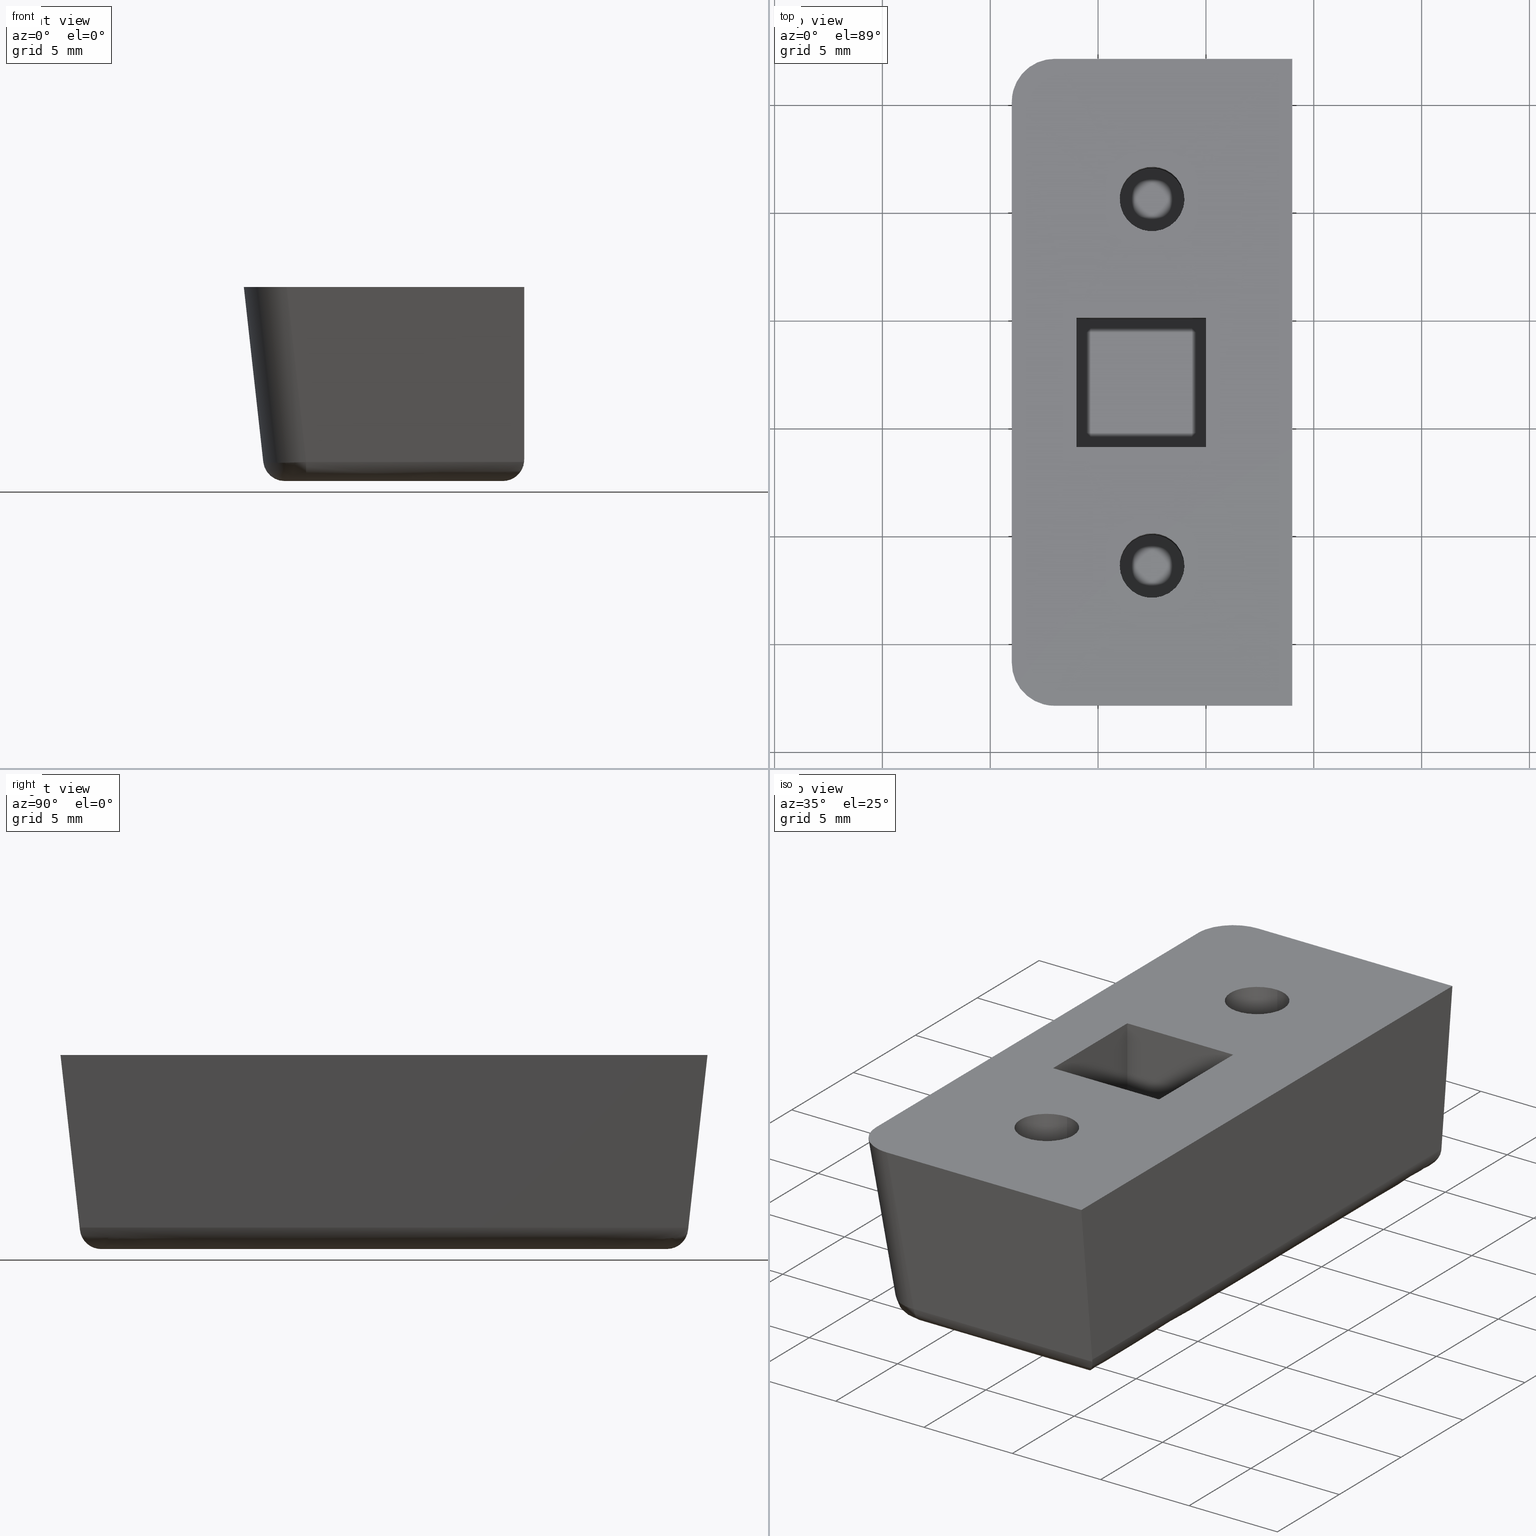
[diagram: canonical four-view strip — front | top / right | iso, engineering-drawing reading convention]
A machine part, canonical four-view strip (front | top / right | iso — engineering-drawing reading convention). The complete STEP part file that produces these views, byte-faithful:
ISO-10303-21;
HEADER;
/****************************************************************
 * Generated by software with PDE/Lib inside                    *
 * PDElib Version 4.4.1-0003, patched  Thursday August 19 11:58 *
 * International Technegroup Inc. (www.iti-oh.com)              *
 ****************************************************************/
FILE_DESCRIPTION((''),'2;1');
FILE_NAME('','2005-12-15T09:37:34',(''),(''),'','CADfix','');
FILE_SCHEMA(('AUTOMOTIVE_DESIGN'));
ENDSEC;
DATA;
#5=APPLICATION_CONTEXT('automotive design');
#6=APPLICATION_PROTOCOL_DEFINITION('Draft International Standard','automotive_design',1998,#5);
#7=PRODUCT_CONTEXT('None',#5,'mechanical');
#8=PRODUCT('rubber pad','','None',(#7));
#9=PRODUCT_RELATED_PRODUCT_CATEGORY('part','description',(#8));
#10=PRODUCT_DEFINITION_FORMATION('None','None',#8);
#11=PRODUCT_DEFINITION_CONTEXT('part definition',#5,'design');
#12=PRODUCT_DEFINITION('None','None',#10,#11);
#18=(NAMED_UNIT(*)PLANE_ANGLE_UNIT()SI_UNIT($,.RADIAN.));
#19=DIMENSIONAL_EXPONENTS(0.0,0.0,0.0,0.0,0.0,0.0,0.0);
#20=PLANE_ANGLE_MEASURE_WITH_UNIT(PLANE_ANGLE_MEASURE(0.017453292500000),#18);
#24=(CONVERSION_BASED_UNIT('DEGREE',#20)NAMED_UNIT(#19)PLANE_ANGLE_UNIT());
#28=(NAMED_UNIT(*)SI_UNIT($,.STERADIAN.)SOLID_ANGLE_UNIT());
#32=(LENGTH_UNIT()NAMED_UNIT(*)SI_UNIT(.MILLI.,.METRE.));
#34=UNCERTAINTY_MEASURE_WITH_UNIT(LENGTH_MEASURE(0.001000000000000),#32,'DISTANCE_ACCURACY_VALUE','');
#36=(GEOMETRIC_REPRESENTATION_CONTEXT(3)GLOBAL_UNCERTAINTY_ASSIGNED_CONTEXT((#34))GLOBAL_UNIT_ASSIGNED_CONTEXT((#24,#28,#32))REPRESENTATION_CONTEXT('None','None'));
#37=AXIS2_PLACEMENT_3D('',#38,#39,#40);
#38=CARTESIAN_POINT('',(0.0,0.0,0.0));
#39=DIRECTION('',(0.0,0.0,1.0));
#40=DIRECTION('',(1.0,0.0,0.0));
#41=ADVANCED_BREP_SHAPE_REPRESENTATION('',(#37,#1159),#36);
#42=PRODUCT_DEFINITION_SHAPE('','',#12);
#43=SHAPE_DEFINITION_REPRESENTATION(#42,#41);
#44=CARTESIAN_POINT('',(-182.677051351985110,-17.989514289545500,34.399999999999999));
#45=CARTESIAN_POINT('',(-182.634422092956950,-17.994581423172914,34.399999999999999));
#46=CARTESIAN_POINT('',(-182.591572809302310,-17.997202197632799,34.399999999999999));
#47=CARTESIAN_POINT('',(-181.094370611669430,-18.088775006935087,34.400000000000006));
#48=CARTESIAN_POINT('',(-181.002797802367210,-16.591572809302289,34.399999999999999));
#49=CARTESIAN_POINT('',(-180.911224993064880,-15.094370611669488,34.400000000000006));
#50=CARTESIAN_POINT('',(-182.408427190697690,-15.002797802367200,34.399999999999999));
#51=CARTESIAN_POINT('',(-182.677051351985110,-17.989514289545500,38.602499999999999));
#52=CARTESIAN_POINT('',(-182.634422092956950,-17.994581423172914,38.602499999999999));
#53=CARTESIAN_POINT('',(-182.591572809302310,-17.997202197632799,38.602499999999999));
#54=CARTESIAN_POINT('',(-181.094370611669430,-18.088775006935087,38.602499999999999));
#55=CARTESIAN_POINT('',(-181.002797802367210,-16.591572809302289,38.602499999999999));
#56=CARTESIAN_POINT('',(-180.911224993064880,-15.094370611669488,38.602499999999999));
#57=CARTESIAN_POINT('',(-182.408427190697690,-15.002797802367200,38.602499999999999));
#65=(BOUNDED_SURFACE()B_SPLINE_SURFACE(2,1,((#44,#51),(#45,#52),(#46,#53),(#47,#54),(#48,#55),(#49,#56),(#50,#57)),.UNSPECIFIED.,.F.,.F.,.U.)B_SPLINE_SURFACE_WITH_KNOTS((3,2,2,3),(2,2),(3.078760800517997,3.141592653589793,4.712388980384690,6.283185307179586),(0.0,4.202500000000001),.UNSPECIFIED.)GEOMETRIC_REPRESENTATION_ITEM()RATIONAL_B_SPLINE_SURFACE(((0.977505800795127,0.977505800795127),(0.988284271247462,0.988284271247462),(1.0,1.0),(0.707106781186548,0.707106781186548),(1.0,1.0),(0.707106781186548,0.707106781186548),(1.0,1.0)))REPRESENTATION_ITEM('')SURFACE());
#66=CARTESIAN_POINT('',(-182.677051351996910,-17.989514289544100,34.500000000000000));
#67=VERTEX_POINT('',#66);
#68=CARTESIAN_POINT('',(-181.0,-16.500000000000000,34.500000000000000));
#69=VERTEX_POINT('',#68);
#70=CARTESIAN_POINT('',(-182.677051351996880,-17.989514289544108,34.500000000000000));
#71=CARTESIAN_POINT('',(-182.588836179489730,-18.000000000000011,34.500000000000000));
#72=CARTESIAN_POINT('',(-182.500000000000000,-18.0,34.500000000000000));
#73=CARTESIAN_POINT('',(-180.999999999999970,-18.000000000000007,34.500000000000000));
#74=CARTESIAN_POINT('',(-181.0,-16.500000000000000,34.500000000000000));
#82=(BOUNDED_CURVE()B_SPLINE_CURVE(2,(#70,#71,#72,#73,#74),.UNSPECIFIED.,.F.,.U.)B_SPLINE_CURVE_WITH_KNOTS((3,2,3),(0.229562473512975,0.250000000000000,0.500000000000000),.UNSPECIFIED.)CURVE()GEOMETRIC_REPRESENTATION_ITEM()RATIONAL_B_SPLINE_CURVE((0.956026754182654,0.976055948330520,1.0,0.707106781186548,1.0))REPRESENTATION_ITEM(''));
#83=EDGE_CURVE('',#67,#69,#82,.T.);
#84=ORIENTED_EDGE('',*,*,#83,.F.);
#85=CARTESIAN_POINT('',(-182.677051351996910,-17.989514289544100,38.500000000000000));
#86=VERTEX_POINT('',#85);
#87=CARTESIAN_POINT('',(-182.677051351996910,-17.989514289544100,34.500000000000000));
#88=CARTESIAN_POINT('',(-182.677051351996910,-17.989514289544100,38.500000000000000));
#89=QUASI_UNIFORM_CURVE('',1,(#87,#88),.UNSPECIFIED.,.F.,.U.);
#90=EDGE_CURVE('',#67,#86,#89,.T.);
#91=ORIENTED_EDGE('',*,*,#90,.T.);
#92=CARTESIAN_POINT('',(-181.0,-16.500000000000000,38.500000000000000));
#93=VERTEX_POINT('',#92);
#94=CARTESIAN_POINT('',(-182.677051351996880,-17.989514289544108,38.500000000000000));
#95=CARTESIAN_POINT('',(-182.588836179489730,-18.000000000000011,38.500000000000000));
#96=CARTESIAN_POINT('',(-182.500000000000000,-18.0,38.500000000000000));
#97=CARTESIAN_POINT('',(-180.999999999999970,-18.000000000000007,38.500000000000000));
#98=CARTESIAN_POINT('',(-181.0,-16.500000000000000,38.500000000000000));
#106=(BOUNDED_CURVE()B_SPLINE_CURVE(2,(#94,#95,#96,#97,#98),.UNSPECIFIED.,.F.,.U.)B_SPLINE_CURVE_WITH_KNOTS((3,2,3),(0.229562473512975,0.250000000000000,0.500000000000000),.UNSPECIFIED.)CURVE()GEOMETRIC_REPRESENTATION_ITEM()RATIONAL_B_SPLINE_CURVE((0.956026754182654,0.976055948330520,1.0,0.707106781186548,1.0))REPRESENTATION_ITEM(''));
#107=EDGE_CURVE('',#86,#93,#106,.T.);
#108=ORIENTED_EDGE('',*,*,#107,.T.);
#109=CARTESIAN_POINT('',(-182.408427190619700,-15.002797802371971,38.500000000000000));
#110=VERTEX_POINT('',#109);
#111=CARTESIAN_POINT('',(-181.0,-16.500000000000000,38.500000000000000));
#112=CARTESIAN_POINT('',(-181.000000000000090,-15.088940899788795,38.500000000000007));
#113=CARTESIAN_POINT('',(-182.408427190619730,-15.002797802371971,38.500000000000000));
#121=(BOUNDED_CURVE()B_SPLINE_CURVE(2,(#111,#112,#113),.UNSPECIFIED.,.F.,.U.)B_SPLINE_CURVE_WITH_KNOTS((3,3),(0.500000000000000,0.739332962223986),.UNSPECIFIED.)CURVE()GEOMETRIC_REPRESENTATION_ITEM()RATIONAL_B_SPLINE_CURVE((1.0,0.719603993304233,0.976072041634662))REPRESENTATION_ITEM(''));
#122=EDGE_CURVE('',#93,#110,#121,.T.);
#123=ORIENTED_EDGE('',*,*,#122,.T.);
#124=CARTESIAN_POINT('',(-182.408427190619700,-15.002797802371971,34.500000000000000));
#125=VERTEX_POINT('',#124);
#126=CARTESIAN_POINT('',(-182.408427190619700,-15.002797802371971,34.500000000000000));
#127=CARTESIAN_POINT('',(-182.408427190619700,-15.002797802371971,38.500000000000000));
#128=QUASI_UNIFORM_CURVE('',1,(#126,#127),.UNSPECIFIED.,.F.,.U.);
#129=EDGE_CURVE('',#125,#110,#128,.T.);
#130=ORIENTED_EDGE('',*,*,#129,.F.);
#131=CARTESIAN_POINT('',(-181.0,-16.500000000000000,34.500000000000000));
#132=CARTESIAN_POINT('',(-181.000000000000090,-15.088940899788795,34.500000000000000));
#133=CARTESIAN_POINT('',(-182.408427190619730,-15.002797802371971,34.500000000000000));
#141=(BOUNDED_CURVE()B_SPLINE_CURVE(2,(#131,#132,#133),.UNSPECIFIED.,.F.,.U.)B_SPLINE_CURVE_WITH_KNOTS((3,3),(0.500000000000000,0.739332962223986),.UNSPECIFIED.)CURVE()GEOMETRIC_REPRESENTATION_ITEM()RATIONAL_B_SPLINE_CURVE((1.0,0.719603993304233,0.976072041634662))REPRESENTATION_ITEM(''));
#142=EDGE_CURVE('',#69,#125,#141,.T.);
#143=ORIENTED_EDGE('',*,*,#142,.F.);
#144=EDGE_LOOP('',(#84,#91,#108,#123,#130,#143));
#145=FACE_OUTER_BOUND('',#144,.T.);
#146=ADVANCED_FACE('',(#145),#65,.F.);
#147=CARTESIAN_POINT('',(-182.408427190697690,-15.002797802367200,34.399999999999999));
#148=CARTESIAN_POINT('',(-183.905629388330480,-14.911224993064913,34.400000000000006));
#149=CARTESIAN_POINT('',(-183.997202197632790,-16.408427190697719,34.399999999999999));
#150=CARTESIAN_POINT('',(-184.083679295098790,-17.822315236259243,34.399999999999999));
#151=CARTESIAN_POINT('',(-182.677051351985110,-17.989514289545500,34.399999999999999));
#152=CARTESIAN_POINT('',(-182.408427190697690,-15.002797802367200,38.602499999999999));
#153=CARTESIAN_POINT('',(-183.905629388330480,-14.911224993064913,38.602499999999999));
#154=CARTESIAN_POINT('',(-183.997202197632790,-16.408427190697719,38.602499999999999));
#155=CARTESIAN_POINT('',(-184.083679295098790,-17.822315236259243,38.602500000000006));
#156=CARTESIAN_POINT('',(-182.677051351985110,-17.989514289545500,38.602499999999999));
#164=(BOUNDED_SURFACE()B_SPLINE_SURFACE(2,1,((#147,#152),(#148,#153),(#149,#154),(#150,#155),(#151,#156)),.UNSPECIFIED.,.F.,.F.,.U.)B_SPLINE_SURFACE_WITH_KNOTS((3,2,3),(2,2),(0.0,1.570796326794897,3.078760800517997),(0.0,4.202500000000002),.UNSPECIFIED.)GEOMETRIC_REPRESENTATION_ITEM()RATIONAL_B_SPLINE_SURFACE(((1.0,1.0),(0.707106781186548,0.707106781186548),(1.0,1.0),(0.718822509939086,0.718822509939086),(0.977505800795127,0.977505800795127)))REPRESENTATION_ITEM('')SURFACE());
#165=CARTESIAN_POINT('',(-184.0,-16.500000000000000,34.500000000000000));
#166=VERTEX_POINT('',#165);
#167=CARTESIAN_POINT('',(-184.0,-16.500000000000000,34.500000000000000));
#168=CARTESIAN_POINT('',(-184.000000000000060,-17.832261788905868,34.500000000000000));
#169=CARTESIAN_POINT('',(-182.677051351996880,-17.989514289544108,34.500000000000000));
#177=(BOUNDED_CURVE()B_SPLINE_CURVE(2,(#167,#168,#169),.UNSPECIFIED.,.F.,.U.)B_SPLINE_CURVE_WITH_KNOTS((3,3),(0.0,0.229562473512975),.UNSPECIFIED.)CURVE()GEOMETRIC_REPRESENTATION_ITEM()RATIONAL_B_SPLINE_CURVE((1.0,0.731050832856028,0.956026754182654))REPRESENTATION_ITEM(''));
#178=EDGE_CURVE('',#166,#67,#177,.T.);
#179=ORIENTED_EDGE('',*,*,#178,.F.);
#180=CARTESIAN_POINT('',(-182.408427190619760,-15.002797802371978,34.500000000000000));
#181=CARTESIAN_POINT('',(-182.454170854973880,-15.000000000000004,34.499999999999993));
#182=CARTESIAN_POINT('',(-182.500000000000000,-15.0,34.500000000000000));
#183=CARTESIAN_POINT('',(-183.999999999999910,-15.000000000000009,34.500000000000000));
#184=CARTESIAN_POINT('',(-184.0,-16.500000000000000,34.500000000000000));
#192=(BOUNDED_CURVE()B_SPLINE_CURVE(2,(#180,#181,#182,#183,#184),.UNSPECIFIED.,.F.,.U.)B_SPLINE_CURVE_WITH_KNOTS((3,2,3),(0.739332962223985,0.750000000000000,1.0),.UNSPECIFIED.)CURVE()GEOMETRIC_REPRESENTATION_ITEM()RATIONAL_B_SPLINE_CURVE((0.976072041634660,0.987502787882313,1.0,0.707106781186548,1.0))REPRESENTATION_ITEM(''));
#193=EDGE_CURVE('',#125,#166,#192,.T.);
#194=ORIENTED_EDGE('',*,*,#193,.F.);
#195=ORIENTED_EDGE('',*,*,#129,.T.);
#196=CARTESIAN_POINT('',(-184.0,-16.500000000000000,38.500000000000000));
#197=VERTEX_POINT('',#196);
#198=CARTESIAN_POINT('',(-182.408427190619760,-15.002797802371978,38.500000000000000));
#199=CARTESIAN_POINT('',(-182.454170854973880,-15.000000000000004,38.500000000000000));
#200=CARTESIAN_POINT('',(-182.500000000000000,-15.0,38.500000000000000));
#201=CARTESIAN_POINT('',(-183.999999999999910,-15.000000000000009,38.500000000000000));
#202=CARTESIAN_POINT('',(-184.0,-16.500000000000000,38.500000000000000));
#210=(BOUNDED_CURVE()B_SPLINE_CURVE(2,(#198,#199,#200,#201,#202),.UNSPECIFIED.,.F.,.U.)B_SPLINE_CURVE_WITH_KNOTS((3,2,3),(0.739332962223985,0.750000000000000,1.0),.UNSPECIFIED.)CURVE()GEOMETRIC_REPRESENTATION_ITEM()RATIONAL_B_SPLINE_CURVE((0.976072041634660,0.987502787882313,1.0,0.707106781186548,1.0))REPRESENTATION_ITEM(''));
#211=EDGE_CURVE('',#110,#197,#210,.T.);
#212=ORIENTED_EDGE('',*,*,#211,.T.);
#213=CARTESIAN_POINT('',(-184.0,-16.500000000000000,38.500000000000000));
#214=CARTESIAN_POINT('',(-184.000000000000060,-17.832261788905868,38.500000000000000));
#215=CARTESIAN_POINT('',(-182.677051351996880,-17.989514289544108,38.500000000000000));
#223=(BOUNDED_CURVE()B_SPLINE_CURVE(2,(#213,#214,#215),.UNSPECIFIED.,.F.,.U.)B_SPLINE_CURVE_WITH_KNOTS((3,3),(0.0,0.229562473512975),.UNSPECIFIED.)CURVE()GEOMETRIC_REPRESENTATION_ITEM()RATIONAL_B_SPLINE_CURVE((1.0,0.731050832856028,0.956026754182654))REPRESENTATION_ITEM(''));
#224=EDGE_CURVE('',#197,#86,#223,.T.);
#225=ORIENTED_EDGE('',*,*,#224,.T.);
#226=ORIENTED_EDGE('',*,*,#90,.F.);
#227=EDGE_LOOP('',(#179,#194,#195,#212,#225,#226));
#228=FACE_OUTER_BOUND('',#227,.T.);
#229=ADVANCED_FACE('',(#228),#164,.F.);
#230=CARTESIAN_POINT('',(-182.677051351985110,-0.989514289545554,34.399999999999999));
#231=CARTESIAN_POINT('',(-182.634422092956950,-0.994581423172964,34.399999999999999));
#232=CARTESIAN_POINT('',(-182.591572809302310,-0.997202197632856,34.399999999999999));
#233=CARTESIAN_POINT('',(-181.094370611669430,-1.088775006935141,34.400000000000006));
#234=CARTESIAN_POINT('',(-181.002797802367210,0.408427190697660,34.399999999999999));
#235=CARTESIAN_POINT('',(-180.911224993064880,1.905629388330461,34.400000000000006));
#236=CARTESIAN_POINT('',(-182.408427190697690,1.997202197632745,34.399999999999999));
#237=CARTESIAN_POINT('',(-182.677051351985110,-0.989514289545554,38.602499999999999));
#238=CARTESIAN_POINT('',(-182.634422092956950,-0.994581423172964,38.602499999999999));
#239=CARTESIAN_POINT('',(-182.591572809302310,-0.997202197632856,38.602499999999999));
#240=CARTESIAN_POINT('',(-181.094370611669430,-1.088775006935141,38.602499999999999));
#241=CARTESIAN_POINT('',(-181.002797802367210,0.408427190697660,38.602499999999999));
#242=CARTESIAN_POINT('',(-180.911224993064880,1.905629388330461,38.602499999999999));
#243=CARTESIAN_POINT('',(-182.408427190697690,1.997202197632745,38.602499999999999));
#251=(BOUNDED_SURFACE()B_SPLINE_SURFACE(2,1,((#230,#237),(#231,#238),(#232,#239),(#233,#240),(#234,#241),(#235,#242),(#236,#243)),.UNSPECIFIED.,.F.,.F.,.U.)B_SPLINE_SURFACE_WITH_KNOTS((3,2,2,3),(2,2),(3.078760800517997,3.141592653589793,4.712388980384690,6.283185307179586),(0.0,4.202500000000001),.UNSPECIFIED.)GEOMETRIC_REPRESENTATION_ITEM()RATIONAL_B_SPLINE_SURFACE(((0.977505800795127,0.977505800795127),(0.988284271247462,0.988284271247462),(1.0,1.0),(0.707106781186548,0.707106781186548),(1.0,1.0),(0.707106781186548,0.707106781186548),(1.0,1.0)))REPRESENTATION_ITEM('')SURFACE());
#252=CARTESIAN_POINT('',(-182.677051351996910,-0.989514289544156,34.500000000000000));
#253=VERTEX_POINT('',#252);
#254=CARTESIAN_POINT('',(-181.0,0.499999999999945,34.500000000000000));
#255=VERTEX_POINT('',#254);
#256=CARTESIAN_POINT('',(-182.677051351996880,-0.989514289544156,34.500000000000000));
#257=CARTESIAN_POINT('',(-182.588836179489730,-1.000000000000055,34.500000000000000));
#258=CARTESIAN_POINT('',(-182.500000000000000,-1.000000000000055,34.500000000000000));
#259=CARTESIAN_POINT('',(-180.999999999999970,-1.000000000000054,34.500000000000000));
#260=CARTESIAN_POINT('',(-181.0,0.499999999999945,34.500000000000000));
#268=(BOUNDED_CURVE()B_SPLINE_CURVE(2,(#256,#257,#258,#259,#260),.UNSPECIFIED.,.F.,.U.)B_SPLINE_CURVE_WITH_KNOTS((3,2,3),(0.229562473512975,0.250000000000000,0.500000000000000),.UNSPECIFIED.)CURVE()GEOMETRIC_REPRESENTATION_ITEM()RATIONAL_B_SPLINE_CURVE((0.956026754182654,0.976055948330520,1.0,0.707106781186548,1.0))REPRESENTATION_ITEM(''));
#269=EDGE_CURVE('',#253,#255,#268,.T.);
#270=ORIENTED_EDGE('',*,*,#269,.F.);
#271=CARTESIAN_POINT('',(-182.677051351996910,-0.989514289544156,38.500000000000000));
#272=VERTEX_POINT('',#271);
#273=CARTESIAN_POINT('',(-182.677051351996910,-0.989514289544156,34.500000000000000));
#274=CARTESIAN_POINT('',(-182.677051351996910,-0.989514289544156,38.500000000000000));
#275=QUASI_UNIFORM_CURVE('',1,(#273,#274),.UNSPECIFIED.,.F.,.U.);
#276=EDGE_CURVE('',#253,#272,#275,.T.);
#277=ORIENTED_EDGE('',*,*,#276,.T.);
#278=CARTESIAN_POINT('',(-181.0,0.499999999999945,38.500000000000000));
#279=VERTEX_POINT('',#278);
#280=CARTESIAN_POINT('',(-182.677051351996880,-0.989514289544156,38.500000000000000));
#281=CARTESIAN_POINT('',(-182.588836179489730,-1.000000000000056,38.500000000000000));
#282=CARTESIAN_POINT('',(-182.500000000000000,-1.000000000000055,38.500000000000000));
#283=CARTESIAN_POINT('',(-180.999999999999970,-1.000000000000054,38.500000000000000));
#284=CARTESIAN_POINT('',(-181.0,0.499999999999945,38.500000000000000));
#292=(BOUNDED_CURVE()B_SPLINE_CURVE(2,(#280,#281,#282,#283,#284),.UNSPECIFIED.,.F.,.U.)B_SPLINE_CURVE_WITH_KNOTS((3,2,3),(0.229562473512975,0.250000000000000,0.500000000000000),.UNSPECIFIED.)CURVE()GEOMETRIC_REPRESENTATION_ITEM()RATIONAL_B_SPLINE_CURVE((0.956026754182654,0.976055948330520,1.0,0.707106781186548,1.0))REPRESENTATION_ITEM(''));
#293=EDGE_CURVE('',#272,#279,#292,.T.);
#294=ORIENTED_EDGE('',*,*,#293,.T.);
#295=CARTESIAN_POINT('',(-182.408427190619700,1.997202197627974,38.500000000000000));
#296=VERTEX_POINT('',#295);
#297=CARTESIAN_POINT('',(-181.0,0.499999999999945,38.500000000000000));
#298=CARTESIAN_POINT('',(-181.000000000000090,1.911059100211155,38.500000000000007));
#299=CARTESIAN_POINT('',(-182.408427190619730,1.997202197627975,38.500000000000000));
#307=(BOUNDED_CURVE()B_SPLINE_CURVE(2,(#297,#298,#299),.UNSPECIFIED.,.F.,.U.)B_SPLINE_CURVE_WITH_KNOTS((3,3),(0.500000000000000,0.739332962223986),.UNSPECIFIED.)CURVE()GEOMETRIC_REPRESENTATION_ITEM()RATIONAL_B_SPLINE_CURVE((1.0,0.719603993304233,0.976072041634662))REPRESENTATION_ITEM(''));
#308=EDGE_CURVE('',#279,#296,#307,.T.);
#309=ORIENTED_EDGE('',*,*,#308,.T.);
#310=CARTESIAN_POINT('',(-182.408427190619700,1.997202197627974,34.500000000000000));
#311=VERTEX_POINT('',#310);
#312=CARTESIAN_POINT('',(-182.408427190619700,1.997202197627974,34.500000000000000));
#313=CARTESIAN_POINT('',(-182.408427190619700,1.997202197627974,38.500000000000000));
#314=QUASI_UNIFORM_CURVE('',1,(#312,#313),.UNSPECIFIED.,.F.,.U.);
#315=EDGE_CURVE('',#311,#296,#314,.T.);
#316=ORIENTED_EDGE('',*,*,#315,.F.);
#317=CARTESIAN_POINT('',(-181.0,0.499999999999945,34.500000000000000));
#318=CARTESIAN_POINT('',(-181.000000000000090,1.911059100211155,34.500000000000000));
#319=CARTESIAN_POINT('',(-182.408427190619730,1.997202197627975,34.500000000000000));
#327=(BOUNDED_CURVE()B_SPLINE_CURVE(2,(#317,#318,#319),.UNSPECIFIED.,.F.,.U.)B_SPLINE_CURVE_WITH_KNOTS((3,3),(0.500000000000000,0.739332962223986),.UNSPECIFIED.)CURVE()GEOMETRIC_REPRESENTATION_ITEM()RATIONAL_B_SPLINE_CURVE((1.0,0.719603993304233,0.976072041634662))REPRESENTATION_ITEM(''));
#328=EDGE_CURVE('',#255,#311,#327,.T.);
#329=ORIENTED_EDGE('',*,*,#328,.F.);
#330=EDGE_LOOP('',(#270,#277,#294,#309,#316,#329));
#331=FACE_OUTER_BOUND('',#330,.T.);
#332=ADVANCED_FACE('',(#331),#251,.F.);
#333=CARTESIAN_POINT('',(-182.408427190697690,1.997202197632745,34.399999999999999));
#334=CARTESIAN_POINT('',(-183.905629388330480,2.088775006935031,34.400000000000006));
#335=CARTESIAN_POINT('',(-183.997202197632790,0.591572809302230,34.399999999999999));
#336=CARTESIAN_POINT('',(-184.083679295098790,-0.822315236259307,34.399999999999999));
#337=CARTESIAN_POINT('',(-182.677051351985110,-0.989514289545554,34.399999999999999));
#338=CARTESIAN_POINT('',(-182.408427190697690,1.997202197632745,38.602499999999999));
#339=CARTESIAN_POINT('',(-183.905629388330480,2.088775006935031,38.602499999999999));
#340=CARTESIAN_POINT('',(-183.997202197632790,0.591572809302230,38.602499999999999));
#341=CARTESIAN_POINT('',(-184.083679295098790,-0.822315236259307,38.602500000000006));
#342=CARTESIAN_POINT('',(-182.677051351985110,-0.989514289545554,38.602499999999999));
#350=(BOUNDED_SURFACE()B_SPLINE_SURFACE(2,1,((#333,#338),(#334,#339),(#335,#340),(#336,#341),(#337,#342)),.UNSPECIFIED.,.F.,.F.,.U.)B_SPLINE_SURFACE_WITH_KNOTS((3,2,3),(2,2),(0.0,1.570796326794897,3.078760800517997),(0.0,4.202500000000002),.UNSPECIFIED.)GEOMETRIC_REPRESENTATION_ITEM()RATIONAL_B_SPLINE_SURFACE(((1.0,1.0),(0.707106781186548,0.707106781186548),(1.0,1.0),(0.718822509939086,0.718822509939086),(0.977505800795127,0.977505800795127)))REPRESENTATION_ITEM('')SURFACE());
#351=CARTESIAN_POINT('',(-184.0,0.499999999999945,34.500000000000000));
#352=VERTEX_POINT('',#351);
#353=CARTESIAN_POINT('',(-184.0,0.499999999999945,34.500000000000000));
#354=CARTESIAN_POINT('',(-184.000000000000060,-0.832261788905913,34.500000000000000));
#355=CARTESIAN_POINT('',(-182.677051351996880,-0.989514289544156,34.500000000000000));
#363=(BOUNDED_CURVE()B_SPLINE_CURVE(2,(#353,#354,#355),.UNSPECIFIED.,.F.,.U.)B_SPLINE_CURVE_WITH_KNOTS((3,3),(0.0,0.229562473512975),.UNSPECIFIED.)CURVE()GEOMETRIC_REPRESENTATION_ITEM()RATIONAL_B_SPLINE_CURVE((1.0,0.731050832856028,0.956026754182654))REPRESENTATION_ITEM(''));
#364=EDGE_CURVE('',#352,#253,#363,.T.);
#365=ORIENTED_EDGE('',*,*,#364,.F.);
#366=CARTESIAN_POINT('',(-182.408427190619760,1.997202197627974,34.500000000000000));
#367=CARTESIAN_POINT('',(-182.454170854973880,1.999999999999943,34.499999999999993));
#368=CARTESIAN_POINT('',(-182.500000000000000,1.999999999999945,34.500000000000000));
#369=CARTESIAN_POINT('',(-183.999999999999910,1.999999999999945,34.500000000000000));
#370=CARTESIAN_POINT('',(-184.0,0.499999999999945,34.500000000000000));
#378=(BOUNDED_CURVE()B_SPLINE_CURVE(2,(#366,#367,#368,#369,#370),.UNSPECIFIED.,.F.,.U.)B_SPLINE_CURVE_WITH_KNOTS((3,2,3),(0.739332962223985,0.750000000000000,1.0),.UNSPECIFIED.)CURVE()GEOMETRIC_REPRESENTATION_ITEM()RATIONAL_B_SPLINE_CURVE((0.976072041634660,0.987502787882313,1.0,0.707106781186548,1.0))REPRESENTATION_ITEM(''));
#379=EDGE_CURVE('',#311,#352,#378,.T.);
#380=ORIENTED_EDGE('',*,*,#379,.F.);
#381=ORIENTED_EDGE('',*,*,#315,.T.);
#382=CARTESIAN_POINT('',(-184.0,0.499999999999945,38.500000000000000));
#383=VERTEX_POINT('',#382);
#384=CARTESIAN_POINT('',(-182.408427190619760,1.997202197627974,38.500000000000000));
#385=CARTESIAN_POINT('',(-182.454170854973880,1.999999999999943,38.500000000000000));
#386=CARTESIAN_POINT('',(-182.500000000000000,1.999999999999945,38.500000000000000));
#387=CARTESIAN_POINT('',(-183.999999999999910,1.999999999999945,38.500000000000000));
#388=CARTESIAN_POINT('',(-184.0,0.499999999999945,38.500000000000000));
#396=(BOUNDED_CURVE()B_SPLINE_CURVE(2,(#384,#385,#386,#387,#388),.UNSPECIFIED.,.F.,.U.)B_SPLINE_CURVE_WITH_KNOTS((3,2,3),(0.739332962223985,0.750000000000000,1.0),.UNSPECIFIED.)CURVE()GEOMETRIC_REPRESENTATION_ITEM()RATIONAL_B_SPLINE_CURVE((0.976072041634660,0.987502787882313,1.0,0.707106781186548,1.0))REPRESENTATION_ITEM(''));
#397=EDGE_CURVE('',#296,#383,#396,.T.);
#398=ORIENTED_EDGE('',*,*,#397,.T.);
#399=CARTESIAN_POINT('',(-184.0,0.499999999999945,38.500000000000000));
#400=CARTESIAN_POINT('',(-184.000000000000060,-0.832261788905913,38.500000000000000));
#401=CARTESIAN_POINT('',(-182.677051351996880,-0.989514289544156,38.500000000000000));
#409=(BOUNDED_CURVE()B_SPLINE_CURVE(2,(#399,#400,#401),.UNSPECIFIED.,.F.,.U.)B_SPLINE_CURVE_WITH_KNOTS((3,3),(0.0,0.229562473512975),.UNSPECIFIED.)CURVE()GEOMETRIC_REPRESENTATION_ITEM()RATIONAL_B_SPLINE_CURVE((1.0,0.731050832856028,0.956026754182654))REPRESENTATION_ITEM(''));
#410=EDGE_CURVE('',#383,#272,#409,.T.);
#411=ORIENTED_EDGE('',*,*,#410,.T.);
#412=ORIENTED_EDGE('',*,*,#276,.F.);
#413=EDGE_LOOP('',(#365,#380,#381,#398,#411,#412));
#414=FACE_OUTER_BOUND('',#413,.T.);
#415=ADVANCED_FACE('',(#414),#350,.F.);
#416=CARTESIAN_POINT('',(-187.104957317984600,-20.111073454926800,29.500000000000000));
#417=CARTESIAN_POINT('',(-187.104957318479790,-20.241770705562811,29.500000000000000));
#418=CARTESIAN_POINT('',(-187.079179777518310,-20.372055235235418,29.500000000000000));
#419=CARTESIAN_POINT('',(-186.979896258395800,-20.612600408049062,29.500000000000000));
#420=CARTESIAN_POINT('',(-186.906428101031200,-20.722745127234219,29.500000000000000));
#421=CARTESIAN_POINT('',(-186.722745253317100,-20.906427975711249,29.500000000000000));
#422=CARTESIAN_POINT('',(-186.612600534438200,-20.979896133526339,29.500000000000000));
#423=CARTESIAN_POINT('',(-186.372055362050390,-21.079179653628511,29.500000000000000));
#424=CARTESIAN_POINT('',(-186.241770832495490,-21.104957195118221,29.500000000000000));
#425=CARTESIAN_POINT('',(-186.111073581873400,-21.104957195149730,29.500000000000000));
#426=CARTESIAN_POINT('',(-188.000000123696310,-20.111073451319175,29.499999999999993));
#427=CARTESIAN_POINT('',(-187.987158155776480,-20.358067981725863,29.499999999998415));
#428=CARTESIAN_POINT('',(-187.928605785229190,-20.600000226007253,29.500000000000028));
#429=CARTESIAN_POINT('',(-187.730302708030050,-21.044976281393993,29.500000000000021));
#430=CARTESIAN_POINT('',(-187.590600817552260,-21.247916736167113,29.499999999998668));
#431=CARTESIAN_POINT('',(-187.247916864973660,-21.590600689952886,29.500000000001375));
#432=CARTESIAN_POINT('',(-187.044976410708410,-21.730302581115570,29.500000000000004));
#433=CARTESIAN_POINT('',(-186.600000356119100,-21.928605659834005,29.500000000000011));
#434=CARTESIAN_POINT('',(-186.358068112127800,-21.987158031215124,29.500000000000004));
#435=CARTESIAN_POINT('',(-186.111073581873540,-21.999999999999975,29.500000000000000));
#436=CARTESIAN_POINT('',(-188.098841054201500,-20.111073450920781,30.389568487814760));
#437=CARTESIAN_POINT('',(-188.097266402965290,-20.370891139333189,30.375396615459071));
#438=CARTESIAN_POINT('',(-188.044452187914000,-20.630203226170231,30.364064416477959));
#439=CARTESIAN_POINT('',(-187.844183202430910,-21.109591624550639,30.348746889442410));
#440=CARTESIAN_POINT('',(-187.696805001516200,-21.329439176733558,30.344769913269811));
#441=CARTESIAN_POINT('',(-187.329439306065300,-21.696804873665361,30.344769913094751));
#442=CARTESIAN_POINT('',(-187.109591754476900,-21.844183075465800,30.348746889090751));
#443=CARTESIAN_POINT('',(-186.630203356902910,-22.044452062881600,30.364064415801931));
#444=CARTESIAN_POINT('',(-186.370891270279800,-22.097266278977720,30.375396614633701));
#445=CARTESIAN_POINT('',(-186.111073581873510,-22.098840931261009,30.389568486864089));
#453=(BOUNDED_SURFACE()B_SPLINE_SURFACE(3,2,((#416,#426,#436),(#417,#427,#437),(#418,#428,#438),(#419,#429,#439),(#420,#430,#440),(#421,#431,#441),(#422,#432,#442),(#423,#433,#443),(#424,#434,#444),(#425,#435,#445)),.UNSPECIFIED.,.F.,.F.,.U.)B_SPLINE_SURFACE_WITH_KNOTS((4,2,2,2,4),(3,3),(0.0,0.780626014389054,1.561252028778110,2.341878043167165,3.122504057556219),(0.0,1.0),.UNSPECIFIED.)GEOMETRIC_REPRESENTATION_ITEM()RATIONAL_B_SPLINE_SURFACE(((1.0,0.745128013224990,1.0),(1.0,0.749886675112878,1.0),(1.0,0.753640632580742,1.0),(1.0,0.758704795580321,1.0),(1.0,0.760009896856607,1.0),(1.0,0.760009896973553,1.0),(1.0,0.758704795696009,1.0),(1.0,0.753640632804809,1.0),(1.0,0.749886675387965,1.0),(1.0,0.745128013543954,1.0)))REPRESENTATION_ITEM('')SURFACE());
#454=CARTESIAN_POINT('',(-187.104957000000010,-20.111073455103750,29.500000000000000));
#455=VERTEX_POINT('',#454);
#456=CARTESIAN_POINT('',(-188.098840734183990,-20.111073453119701,30.389568469517549));
#457=VERTEX_POINT('',#456);
#458=CARTESIAN_POINT('',(-187.104957000000010,-20.111073455103750,29.500000000000000));
#459=CARTESIAN_POINT('',(-187.226635554355200,-20.111073455182169,29.500000038691869));
#460=CARTESIAN_POINT('',(-187.348278003490690,-20.111073455260300,29.522451800438208));
#461=CARTESIAN_POINT('',(-187.575600024310800,-20.111073455416641,29.609325684173051));
#462=CARTESIAN_POINT('',(-187.681212750815090,-20.111073455494790,29.673722260460359));
#463=CARTESIAN_POINT('',(-187.862544447222800,-20.111073455651109,29.836021948392389));
#464=CARTESIAN_POINT('',(-187.938210095631400,-20.111073455729372,29.933877334999870));
#465=CARTESIAN_POINT('',(-188.049656073961500,-20.111073455885709,30.150215419347010));
#466=CARTESIAN_POINT('',(-188.085403632634010,-20.111073455963851,30.268634501787918));
#467=CARTESIAN_POINT('',(-188.098840734183990,-20.111073453119701,30.389568469517549));
#468=B_SPLINE_CURVE_WITH_KNOTS('',3,(#458,#459,#460,#461,#462,#463,#464,#465,#466,#467),.UNSPECIFIED.,.F.,.U.,(4,2,2,2,4),(0.0,0.250000000000000,0.500000000000000,0.750000000000000,1.0),.UNSPECIFIED.);
#469=EDGE_CURVE('',#455,#457,#468,.T.);
#470=ORIENTED_EDGE('',*,*,#469,.F.);
#471=CARTESIAN_POINT('',(-186.111073581873510,-21.104957195149701,29.500000000000000));
#472=VERTEX_POINT('',#471);
#473=CARTESIAN_POINT('',(-186.111073581873510,-21.104957195149730,29.500000000000000));
#474=CARTESIAN_POINT('',(-187.104957635969270,-21.104957195149513,29.500000000000000));
#475=CARTESIAN_POINT('',(-187.104957000000010,-20.111073455103750,29.500000000000000));
#483=(BOUNDED_CURVE()B_SPLINE_CURVE(2,(#473,#474,#475),.UNSPECIFIED.,.F.,.U.)CURVE()GEOMETRIC_REPRESENTATION_ITEM()QUASI_UNIFORM_CURVE()RATIONAL_B_SPLINE_CURVE((1.0,0.711405228805419,1.0))REPRESENTATION_ITEM(''));
#484=EDGE_CURVE('',#472,#455,#483,.T.);
#485=ORIENTED_EDGE('',*,*,#484,.F.);
#486=CARTESIAN_POINT('',(-186.111073581873510,-22.098840931261002,30.389568486864100));
#487=VERTEX_POINT('',#486);
#488=CARTESIAN_POINT('',(-186.111073581873510,-22.098840931260980,30.389568486864100));
#489=CARTESIAN_POINT('',(-186.111073581873570,-21.999999999999968,29.499999999999993));
#490=CARTESIAN_POINT('',(-186.111073581873510,-21.104957195149701,29.500000000000000));
#498=(BOUNDED_CURVE()B_SPLINE_CURVE(2,(#488,#489,#490),.UNSPECIFIED.,.F.,.U.)CURVE()GEOMETRIC_REPRESENTATION_ITEM()QUASI_UNIFORM_CURVE()RATIONAL_B_SPLINE_CURVE((1.0,0.745128013543947,1.0))REPRESENTATION_ITEM(''));
#499=EDGE_CURVE('',#487,#472,#498,.T.);
#500=ORIENTED_EDGE('',*,*,#499,.F.);
#501=CARTESIAN_POINT('',(-188.098840734183990,-20.111073453119701,30.389568469517549));
#502=CARTESIAN_POINT('',(-188.086866245681390,-22.086866433112487,30.281797990746071));
#503=CARTESIAN_POINT('',(-186.111073581873510,-22.098840931261009,30.389568486864100));
#511=(BOUNDED_CURVE()B_SPLINE_CURVE(2,(#501,#502,#503),.UNSPECIFIED.,.F.,.U.)CURVE()GEOMETRIC_REPRESENTATION_ITEM()QUASI_UNIFORM_CURVE()RATIONAL_B_SPLINE_CURVE((1.0,0.711405396075229,1.0))REPRESENTATION_ITEM(''));
#512=EDGE_CURVE('',#457,#487,#511,.T.);
#513=ORIENTED_EDGE('',*,*,#512,.F.);
#514=EDGE_LOOP('',(#470,#485,#500,#513));
#515=FACE_OUTER_BOUND('',#514,.T.);
#516=ADVANCED_FACE('',(#515),#453,.T.);
#517=CARTESIAN_POINT('',(-186.111073581873400,5.104957195149725,29.500000000000000));
#518=CARTESIAN_POINT('',(-186.241770832478810,5.104957195117475,29.500000000000000));
#519=CARTESIAN_POINT('',(-186.372055362018610,5.079179653635132,29.500000000000000));
#520=CARTESIAN_POINT('',(-186.612600534380190,4.979896133556785,29.500000000000000));
#521=CARTESIAN_POINT('',(-186.722745253249090,4.906427975759225,29.500000000000000));
#522=CARTESIAN_POINT('',(-186.906428100961990,4.722745127323478,29.500000000000000));
#523=CARTESIAN_POINT('',(-186.979896258330200,4.612600408161269,29.500000000000000));
#524=CARTESIAN_POINT('',(-187.079179777472600,4.372055235392798,29.500000000000000));
#525=CARTESIAN_POINT('',(-187.104957318454410,4.241770705741354,29.500000000000000));
#526=CARTESIAN_POINT('',(-187.104957317984600,4.111073455122071,29.500000000000000));
#527=CARTESIAN_POINT('',(-186.111073581873600,5.999999999999911,29.500000000000000));
#528=CARTESIAN_POINT('',(-186.358068112096330,5.987158031217469,29.500000000000004));
#529=CARTESIAN_POINT('',(-186.600000356060040,5.928605659849051,29.499999999999325));
#530=CARTESIAN_POINT('',(-187.044976410601290,5.730302581174414,29.500000000000675));
#531=CARTESIAN_POINT('',(-187.247916864847210,5.590600690044905,29.500000000000018));
#532=CARTESIAN_POINT('',(-187.590600817422910,5.247916736330957,29.500000000000014));
#533=CARTESIAN_POINT('',(-187.730302707902640,5.044976281600174,29.500000000001375));
#534=CARTESIAN_POINT('',(-187.928605785134440,4.600000226299693,29.499999999998675));
#535=CARTESIAN_POINT('',(-187.987158155718990,4.358067982058804,29.500000000006352));
#536=CARTESIAN_POINT('',(-188.000000123677010,4.111073451688189,29.500000000000011));
#537=CARTESIAN_POINT('',(-186.111073581873600,6.098840931260995,30.389568486864022));
#538=CARTESIAN_POINT('',(-186.370891270246800,6.097266278978038,30.375396614636902));
#539=CARTESIAN_POINT('',(-186.630203356839390,6.044452062894505,30.364064415804950));
#540=CARTESIAN_POINT('',(-187.109591754361500,5.844183075527596,30.348746889093320));
#541=CARTESIAN_POINT('',(-187.329439305931690,5.696804873763266,30.344769913096592));
#542=CARTESIAN_POINT('',(-187.696805001375400,5.329439176909975,30.344769913267879));
#543=CARTESIAN_POINT('',(-187.844183202296590,5.109591624773934,30.348746889437731));
#544=CARTESIAN_POINT('',(-188.044452187823790,4.630203226484140,30.364064416465389));
#545=CARTESIAN_POINT('',(-188.097266402912600,4.370891139687977,30.375396615441769));
#546=CARTESIAN_POINT('',(-188.098841054199200,4.111073451308979,30.389568487793550));
#554=(BOUNDED_SURFACE()B_SPLINE_SURFACE(3,2,((#517,#527,#537),(#518,#528,#538),(#519,#529,#539),(#520,#530,#540),(#521,#531,#541),(#522,#532,#542),(#523,#533,#543),(#524,#534,#544),(#525,#535,#545),(#526,#536,#546)),.UNSPECIFIED.,.F.,.F.,.U.)B_SPLINE_SURFACE_WITH_KNOTS((4,2,2,2,4),(3,3),(0.0,0.780626014289249,1.561252028578500,2.341878042867750,3.122504057157000),(0.0,1.0),.UNSPECIFIED.)GEOMETRIC_REPRESENTATION_ITEM()RATIONAL_B_SPLINE_SURFACE(((1.0,0.745128013543977,1.0),(1.0,0.749886675387604,1.0),(1.0,0.753640632803613,1.0),(1.0,0.758704795695355,1.0),(1.0,0.760009896971388,1.0),(1.0,0.760009896858797,1.0),(1.0,0.758704795582377,1.0),(1.0,0.753640632584390,1.0),(1.0,0.749886675118749,1.0),(1.0,0.745128013232106,1.0)))REPRESENTATION_ITEM('')SURFACE());
#555=CARTESIAN_POINT('',(-188.098840734183990,4.111073453119674,30.389568469517549));
#556=VERTEX_POINT('',#555);
#557=CARTESIAN_POINT('',(-187.104957000000010,4.111073455122071,29.500000000000000));
#558=VERTEX_POINT('',#557);
#559=CARTESIAN_POINT('',(-188.098840734183990,4.111073453119674,30.389568469517549));
#560=CARTESIAN_POINT('',(-188.085403632633900,4.111073455965343,30.268634501787929));
#561=CARTESIAN_POINT('',(-188.049656073961500,4.111073455888743,30.150215419347010));
#562=CARTESIAN_POINT('',(-187.938210095631400,4.111073455735408,29.933877334999860));
#563=CARTESIAN_POINT('',(-187.862544447222800,4.111073455658698,29.836021948392379));
#564=CARTESIAN_POINT('',(-187.681212750815210,4.111073455505377,29.673722260460359));
#565=CARTESIAN_POINT('',(-187.575600024310800,4.111073455428665,29.609325684173051));
#566=CARTESIAN_POINT('',(-187.348278003490690,4.111073455275331,29.522451800438191));
#567=CARTESIAN_POINT('',(-187.226635554355110,4.111073455198733,29.500000038691869));
#568=CARTESIAN_POINT('',(-187.104957000000010,4.111073455122071,29.500000000000000));
#569=B_SPLINE_CURVE_WITH_KNOTS('',3,(#559,#560,#561,#562,#563,#564,#565,#566,#567,#568),.UNSPECIFIED.,.F.,.U.,(4,2,2,2,4),(0.0,0.250000000000000,0.500000000000000,0.750000000000000,1.0),.UNSPECIFIED.);
#570=EDGE_CURVE('',#556,#558,#569,.T.);
#571=ORIENTED_EDGE('',*,*,#570,.F.);
#572=CARTESIAN_POINT('',(-186.111073581873510,6.098840931261011,30.389568486864100));
#573=VERTEX_POINT('',#572);
#574=CARTESIAN_POINT('',(-186.111073581873510,6.098840931261007,30.389568486864100));
#575=CARTESIAN_POINT('',(-188.086866874126510,6.086866429303731,30.281797956467237));
#576=CARTESIAN_POINT('',(-188.098840734183990,4.111073453119674,30.389568469517549));
#584=(BOUNDED_CURVE()B_SPLINE_CURVE(2,(#574,#575,#576),.UNSPECIFIED.,.F.,.U.)CURVE()GEOMETRIC_REPRESENTATION_ITEM()QUASI_UNIFORM_CURVE()RATIONAL_B_SPLINE_CURVE((1.0,0.711405284315790,1.0))REPRESENTATION_ITEM(''));
#585=EDGE_CURVE('',#573,#556,#584,.T.);
#586=ORIENTED_EDGE('',*,*,#585,.F.);
#587=CARTESIAN_POINT('',(-186.111073581873510,5.104957195149702,29.500000000000000));
#588=VERTEX_POINT('',#587);
#589=CARTESIAN_POINT('',(-186.111073581873510,5.104957195149702,29.500000000000000));
#590=CARTESIAN_POINT('',(-186.111073581873480,5.999999999999968,29.500000000000004));
#591=CARTESIAN_POINT('',(-186.111073581873510,6.098840931260980,30.389568486864100));
#599=(BOUNDED_CURVE()B_SPLINE_CURVE(2,(#589,#590,#591),.UNSPECIFIED.,.F.,.U.)CURVE()GEOMETRIC_REPRESENTATION_ITEM()QUASI_UNIFORM_CURVE()RATIONAL_B_SPLINE_CURVE((1.0,0.745128013543947,1.0))REPRESENTATION_ITEM(''));
#600=EDGE_CURVE('',#588,#573,#599,.T.);
#601=ORIENTED_EDGE('',*,*,#600,.F.);
#602=CARTESIAN_POINT('',(-187.104957000000010,4.111073455122071,29.500000000000000));
#603=CARTESIAN_POINT('',(-187.104957007644340,5.104957195149564,29.499999999999996));
#604=CARTESIAN_POINT('',(-186.111073581873510,5.104957195149702,29.500000000000000));
#612=(BOUNDED_CURVE()B_SPLINE_CURVE(2,(#602,#603,#604),.UNSPECIFIED.,.F.,.U.)CURVE()GEOMETRIC_REPRESENTATION_ITEM()QUASI_UNIFORM_CURVE()RATIONAL_B_SPLINE_CURVE((1.0,0.711405450935300,1.0))REPRESENTATION_ITEM(''));
#613=EDGE_CURVE('',#558,#588,#612,.T.);
#614=ORIENTED_EDGE('',*,*,#613,.F.);
#615=EDGE_LOOP('',(#571,#586,#601,#614));
#616=FACE_OUTER_BOUND('',#615,.T.);
#617=ADVANCED_FACE('',(#616),#554,.T.);
#618=CARTESIAN_POINT('',(-175.753492330938910,-22.101874528882821,30.421540904272160));
#619=CARTESIAN_POINT('',(-186.370013113146910,-22.101874528882821,30.421540904272160));
#620=CARTESIAN_POINT('',(-175.753492330938910,-22.024364417052997,29.436681554238490));
#621=CARTESIAN_POINT('',(-186.370013113146880,-22.024364417052997,29.436681554238490));
#622=CARTESIAN_POINT('',(-175.753492330938880,-21.038634808946583,29.502201753314669));
#623=CARTESIAN_POINT('',(-186.370013113146910,-21.038634808946583,29.502201753314669));
#631=(BOUNDED_SURFACE()B_SPLINE_SURFACE(1,2,((#618,#620,#622),(#619,#621,#623)),.UNSPECIFIED.,.F.,.F.,.U.)B_SPLINE_SURFACE_WITH_KNOTS((2,2),(3,3),(0.0,10.616520782207999),(0.0,0.991416946484800),.UNSPECIFIED.)GEOMETRIC_REPRESENTATION_ITEM()RATIONAL_B_SPLINE_SURFACE(((1.0,0.709620699357863,0.995015317845765),(1.0,0.709620699357863,0.995015317845765)))REPRESENTATION_ITEM('')SURFACE());
#632=CARTESIAN_POINT('',(-176.006116263888490,-22.098840931260948,30.389568486864100));
#633=VERTEX_POINT('',#632);
#634=CARTESIAN_POINT('',(-186.111073581873510,-22.098840931261002,30.389568486864100));
#635=CARTESIAN_POINT('',(-176.006116263888490,-22.098840931260948,30.389568486864100));
#636=QUASI_UNIFORM_CURVE('',1,(#634,#635),.UNSPECIFIED.,.F.,.U.);
#637=EDGE_CURVE('',#487,#633,#636,.T.);
#638=ORIENTED_EDGE('',*,*,#637,.F.);
#639=ORIENTED_EDGE('',*,*,#499,.T.);
#640=CARTESIAN_POINT('',(-177.0,-21.104957195149701,29.500000000000000));
#641=VERTEX_POINT('',#640);
#642=CARTESIAN_POINT('',(-177.0,-21.104957195149701,29.500000000000000));
#643=CARTESIAN_POINT('',(-186.111073581873510,-21.104957195149701,29.500000000000000));
#644=QUASI_UNIFORM_CURVE('',1,(#642,#643),.UNSPECIFIED.,.F.,.U.);
#645=EDGE_CURVE('',#641,#472,#644,.T.);
#646=ORIENTED_EDGE('',*,*,#645,.F.);
#647=CARTESIAN_POINT('',(-176.006116263888490,-22.098840931260948,30.389568486864100));
#648=CARTESIAN_POINT('',(-176.104957195149810,-21.999999999999964,29.500000000000004));
#649=CARTESIAN_POINT('',(-177.0,-21.104957195149701,29.500000000000000));
#657=(BOUNDED_CURVE()B_SPLINE_CURVE(2,(#647,#648,#649),.UNSPECIFIED.,.F.,.U.)CURVE()GEOMETRIC_REPRESENTATION_ITEM()QUASI_UNIFORM_CURVE()RATIONAL_B_SPLINE_CURVE((1.0,0.745128013543948,1.0))REPRESENTATION_ITEM(''));
#658=EDGE_CURVE('',#633,#641,#657,.T.);
#659=ORIENTED_EDGE('',*,*,#658,.F.);
#660=EDGE_LOOP('',(#638,#639,#646,#659));
#661=FACE_OUTER_BOUND('',#660,.T.);
#662=ADVANCED_FACE('',(#661),#631,.T.);
#663=CARTESIAN_POINT('',(-186.363697514823090,6.101874528882830,30.421540904272160));
#664=CARTESIAN_POINT('',(-175.747176732615200,6.101874528882830,30.421540904272160));
#665=CARTESIAN_POINT('',(-186.363697514823090,6.024364417052997,29.436681554238490));
#666=CARTESIAN_POINT('',(-175.747176732615120,6.024364417052997,29.436681554238490));
#667=CARTESIAN_POINT('',(-186.363697514823140,5.038634808946590,29.502201753314669));
#668=CARTESIAN_POINT('',(-175.747176732615120,5.038634808946590,29.502201753314669));
#676=(BOUNDED_SURFACE()B_SPLINE_SURFACE(1,2,((#663,#665,#667),(#664,#666,#668)),.UNSPECIFIED.,.F.,.F.,.U.)B_SPLINE_SURFACE_WITH_KNOTS((2,2),(3,3),(0.0,10.616520782207990),(0.0,0.991416946484800),.UNSPECIFIED.)GEOMETRIC_REPRESENTATION_ITEM()RATIONAL_B_SPLINE_SURFACE(((1.0,0.709620699357863,0.995015317845765),(1.0,0.709620699357863,0.995015317845765)))REPRESENTATION_ITEM('')SURFACE());
#677=CARTESIAN_POINT('',(-177.0,5.104957195149702,29.500000000000000));
#678=VERTEX_POINT('',#677);
#679=CARTESIAN_POINT('',(-186.111073581873510,5.104957195149702,29.500000000000000));
#680=CARTESIAN_POINT('',(-177.0,5.104957195149702,29.500000000000000));
#681=QUASI_UNIFORM_CURVE('',1,(#679,#680),.UNSPECIFIED.,.F.,.U.);
#682=EDGE_CURVE('',#588,#678,#681,.T.);
#683=ORIENTED_EDGE('',*,*,#682,.F.);
#684=ORIENTED_EDGE('',*,*,#600,.T.);
#685=CARTESIAN_POINT('',(-176.006116263888490,6.098840931260920,30.389568486864100));
#686=VERTEX_POINT('',#685);
#687=CARTESIAN_POINT('',(-176.006116263888490,6.098840931260920,30.389568486864100));
#688=CARTESIAN_POINT('',(-186.111073581873510,6.098840931261011,30.389568486864100));
#689=QUASI_UNIFORM_CURVE('',1,(#687,#688),.UNSPECIFIED.,.F.,.U.);
#690=EDGE_CURVE('',#686,#573,#689,.T.);
#691=ORIENTED_EDGE('',*,*,#690,.F.);
#692=CARTESIAN_POINT('',(-177.0,5.104957195149702,29.500000000000000));
#693=CARTESIAN_POINT('',(-176.104957195149750,5.999999999999965,29.500000000000004));
#694=CARTESIAN_POINT('',(-176.006116263888490,6.098840931260920,30.389568486864100));
#702=(BOUNDED_CURVE()B_SPLINE_CURVE(2,(#692,#693,#694),.UNSPECIFIED.,.F.,.U.)CURVE()GEOMETRIC_REPRESENTATION_ITEM()QUASI_UNIFORM_CURVE()RATIONAL_B_SPLINE_CURVE((1.0,0.745128013543948,1.0))REPRESENTATION_ITEM(''));
#703=EDGE_CURVE('',#678,#686,#702,.T.);
#704=ORIENTED_EDGE('',*,*,#703,.F.);
#705=EDGE_LOOP('',(#683,#684,#691,#704));
#706=FACE_OUTER_BOUND('',#705,.T.);
#707=ADVANCED_FACE('',(#706),#676,.T.);
#708=CARTESIAN_POINT('',(-184.149849994185390,-18.149822300607951,34.500000000000000));
#709=CARTESIAN_POINT('',(-184.149849994185390,-14.850186309282989,34.500000000000000));
#710=CARTESIAN_POINT('',(-180.850149925348290,-18.149822300607951,34.500000000000000));
#711=CARTESIAN_POINT('',(-180.850149925348290,-14.850186309282989,34.500000000000000));
#712=B_SPLINE_SURFACE_WITH_KNOTS('',1,1,((#708,#710),(#709,#711)),.UNSPECIFIED.,.F.,.F.,.U.,(2,2),(2,2),(0.0,3.299635991324959),(0.0,3.299700068837106),.UNSPECIFIED.);
#713=ORIENTED_EDGE('',*,*,#178,.T.);
#714=ORIENTED_EDGE('',*,*,#83,.T.);
#715=ORIENTED_EDGE('',*,*,#142,.T.);
#716=ORIENTED_EDGE('',*,*,#193,.T.);
#717=EDGE_LOOP('',(#713,#714,#715,#716));
#718=FACE_OUTER_BOUND('',#717,.T.);
#719=ADVANCED_FACE('',(#718),#712,.F.);
#720=CARTESIAN_POINT('',(-184.149849994185390,-1.149822807521366,34.500000000000000));
#721=CARTESIAN_POINT('',(-184.149849994185390,2.149813714832696,34.500000000000000));
#722=CARTESIAN_POINT('',(-180.850149925348290,-1.149822807521366,34.500000000000000));
#723=CARTESIAN_POINT('',(-180.850149925348290,2.149813714832696,34.500000000000000));
#724=B_SPLINE_SURFACE_WITH_KNOTS('',1,1,((#720,#722),(#721,#723)),.UNSPECIFIED.,.F.,.F.,.U.,(2,2),(2,2),(0.0,3.299636522354062),(0.0,3.299700068837106),.UNSPECIFIED.);
#725=ORIENTED_EDGE('',*,*,#364,.T.);
#726=ORIENTED_EDGE('',*,*,#269,.T.);
#727=ORIENTED_EDGE('',*,*,#328,.T.);
#728=ORIENTED_EDGE('',*,*,#379,.T.);
#729=EDGE_LOOP('',(#725,#726,#727,#728));
#730=FACE_OUTER_BOUND('',#729,.T.);
#731=ADVANCED_FACE('',(#730),#724,.F.);
#732=CARTESIAN_POINT('',(-186.012027478556490,-22.075529689382609,30.193101228453362));
#733=CARTESIAN_POINT('',(-186.969266823575590,-23.032769038885640,38.808256395856638));
#734=CARTESIAN_POINT('',(-188.198856944683110,-22.132816388247523,29.943755018612798));
#735=CARTESIAN_POINT('',(-189.156096289702280,-23.090055737750554,38.558910186016099));
#736=CARTESIAN_POINT('',(-188.072916528389840,-19.949700840328603,30.200316761916863));
#737=CARTESIAN_POINT('',(-189.030155873408940,-20.906940189831641,38.815471929320140));
#745=(BOUNDED_SURFACE()B_SPLINE_SURFACE(1,2,((#732,#734,#736),(#733,#735,#737)),.UNSPECIFIED.,.F.,.F.,.U.)B_SPLINE_SURFACE_WITH_KNOTS((2,2),(3,3),(0.0,8.720866521987658),(0.0,3.540842022849367),.UNSPECIFIED.)GEOMETRIC_REPRESENTATION_ITEM()RATIONAL_B_SPLINE_SURFACE(((1.0,0.671077938095769,0.996128258567118),(1.0,0.671077938095769,0.996128258567118)))REPRESENTATION_ITEM('')SURFACE());
#746=CARTESIAN_POINT('',(-189.0,-21.012232409050149,38.500000000000000));
#747=VERTEX_POINT('',#746);
#748=CARTESIAN_POINT('',(-188.098840734183990,-20.111073453119701,30.389568469517549));
#749=CARTESIAN_POINT('',(-189.0,-21.012232409050149,38.500000000000000));
#750=QUASI_UNIFORM_CURVE('',1,(#748,#749),.UNSPECIFIED.,.F.,.U.);
#751=EDGE_CURVE('',#457,#747,#750,.T.);
#752=ORIENTED_EDGE('',*,*,#751,.F.);
#753=ORIENTED_EDGE('',*,*,#512,.T.);
#754=CARTESIAN_POINT('',(-187.012232527777510,-22.999999881386248,38.500000000000000));
#755=VERTEX_POINT('',#754);
#756=CARTESIAN_POINT('',(-187.012232527777510,-22.999999881386248,38.500000000000000));
#757=CARTESIAN_POINT('',(-186.111073581873510,-22.098840931261002,30.389568486864100));
#758=QUASI_UNIFORM_CURVE('',1,(#756,#757),.UNSPECIFIED.,.F.,.U.);
#759=EDGE_CURVE('',#755,#487,#758,.T.);
#760=ORIENTED_EDGE('',*,*,#759,.F.);
#761=CARTESIAN_POINT('',(-189.0,-21.012232409050149,38.500000000000000));
#762=CARTESIAN_POINT('',(-188.999999999999460,-22.999999881385936,38.500000000000007));
#763=CARTESIAN_POINT('',(-187.012232527777510,-22.999999881386259,38.500000000000000));
#771=(BOUNDED_CURVE()B_SPLINE_CURVE(2,(#761,#762,#763),.UNSPECIFIED.,.F.,.U.)CURVE()GEOMETRIC_REPRESENTATION_ITEM()QUASI_UNIFORM_CURVE()RATIONAL_B_SPLINE_CURVE((1.0,0.711405341221644,1.0))REPRESENTATION_ITEM(''));
#772=EDGE_CURVE('',#747,#755,#771,.T.);
#773=ORIENTED_EDGE('',*,*,#772,.F.);
#774=EDGE_LOOP('',(#752,#753,#760,#773));
#775=FACE_OUTER_BOUND('',#774,.T.);
#776=ADVANCED_FACE('',(#775),#745,.T.);
#777=CARTESIAN_POINT('',(-186.992928063823710,7.032686419561122,38.800384987841937));
#778=CARTESIAN_POINT('',(-186.035688718804610,6.075447070058088,30.185229820438650));
#779=CARTESIAN_POINT('',(-189.123975722734800,7.062497336816977,38.560289620077825));
#780=CARTESIAN_POINT('',(-188.166736377715750,6.105257987313943,29.945134452674523));
#781=CARTESIAN_POINT('',(-189.030988865132710,4.934040512166988,38.807116666558123));
#782=CARTESIAN_POINT('',(-188.073749520113610,3.976801162663955,30.191961499154829));
#790=(BOUNDED_SURFACE()B_SPLINE_SURFACE(1,2,((#777,#779,#781),(#778,#780,#782)),.UNSPECIFIED.,.F.,.F.,.U.)B_SPLINE_SURFACE_WITH_KNOTS((2,2),(3,3),(0.0,8.720866521987663),(0.0,3.478498999687471),.UNSPECIFIED.)GEOMETRIC_REPRESENTATION_ITEM()RATIONAL_B_SPLINE_SURFACE(((1.0,0.681998360062498,1.0),(1.0,0.681998360062498,1.0)))REPRESENTATION_ITEM('')SURFACE());
#791=CARTESIAN_POINT('',(-187.012232527777510,6.999999881386110,38.500000000000000));
#792=VERTEX_POINT('',#791);
#793=CARTESIAN_POINT('',(-186.111073581873510,6.098840931261011,30.389568486864100));
#794=CARTESIAN_POINT('',(-187.012232527777510,6.999999881386110,38.500000000000000));
#795=QUASI_UNIFORM_CURVE('',1,(#793,#794),.UNSPECIFIED.,.F.,.U.);
#796=EDGE_CURVE('',#573,#792,#795,.T.);
#797=ORIENTED_EDGE('',*,*,#796,.F.);
#798=ORIENTED_EDGE('',*,*,#585,.T.);
#799=CARTESIAN_POINT('',(-189.0,5.012232409050130,38.500000000000000));
#800=VERTEX_POINT('',#799);
#801=CARTESIAN_POINT('',(-189.0,5.012232409050130,38.500000000000000));
#802=CARTESIAN_POINT('',(-188.098840734183990,4.111073453119674,30.389568469517549));
#803=QUASI_UNIFORM_CURVE('',1,(#801,#802),.UNSPECIFIED.,.F.,.U.);
#804=EDGE_CURVE('',#800,#556,#803,.T.);
#805=ORIENTED_EDGE('',*,*,#804,.F.);
#806=CARTESIAN_POINT('',(-187.012232527777510,6.999999881386110,38.500000000000000));
#807=CARTESIAN_POINT('',(-189.0,6.999999881385769,38.500000000000007));
#808=CARTESIAN_POINT('',(-189.0,5.012232409050130,38.500000000000000));
#816=(BOUNDED_CURVE()B_SPLINE_CURVE(2,(#806,#807,#808),.UNSPECIFIED.,.F.,.U.)CURVE()GEOMETRIC_REPRESENTATION_ITEM()QUASI_UNIFORM_CURVE()RATIONAL_B_SPLINE_CURVE((1.0,0.711405341221566,1.0))REPRESENTATION_ITEM(''));
#817=EDGE_CURVE('',#792,#800,#816,.T.);
#818=ORIENTED_EDGE('',*,*,#817,.F.);
#819=EDGE_LOOP('',(#797,#798,#805,#818));
#820=FACE_OUTER_BOUND('',#819,.T.);
#821=ADVANCED_FACE('',(#820),#790,.T.);
#822=CARTESIAN_POINT('',(-186.299699988370800,-4.700300011629164,35.0));
#823=CARTESIAN_POINT('',(-179.700299850696610,-4.700300011629164,35.0));
#824=CARTESIAN_POINT('',(-186.299699988370800,-11.299700149303380,35.0));
#825=CARTESIAN_POINT('',(-179.700299850696610,-11.299700149303380,35.0));
#826=B_SPLINE_SURFACE_WITH_KNOTS('',1,1,((#822,#824),(#823,#825)),.UNSPECIFIED.,.F.,.F.,.U.,(2,2),(2,2),(0.0,6.599400137674213),(0.0,6.599400137674213),.UNSPECIFIED.);
#827=CARTESIAN_POINT('',(-186.0,-5.0,35.0));
#828=VERTEX_POINT('',#827);
#829=CARTESIAN_POINT('',(-180.0,-5.0,35.0));
#830=VERTEX_POINT('',#829);
#831=CARTESIAN_POINT('',(-186.0,-5.0,35.0));
#832=CARTESIAN_POINT('',(-180.0,-5.0,35.0));
#833=QUASI_UNIFORM_CURVE('',1,(#831,#832),.UNSPECIFIED.,.F.,.U.);
#834=EDGE_CURVE('',#828,#830,#833,.T.);
#835=ORIENTED_EDGE('',*,*,#834,.F.);
#836=CARTESIAN_POINT('',(-186.0,-11.0,35.0));
#837=VERTEX_POINT('',#836);
#838=CARTESIAN_POINT('',(-186.0,-11.0,35.0));
#839=CARTESIAN_POINT('',(-186.0,-5.0,35.0));
#840=QUASI_UNIFORM_CURVE('',1,(#838,#839),.UNSPECIFIED.,.F.,.U.);
#841=EDGE_CURVE('',#837,#828,#840,.T.);
#842=ORIENTED_EDGE('',*,*,#841,.F.);
#843=CARTESIAN_POINT('',(-180.0,-11.0,35.0));
#844=VERTEX_POINT('',#843);
#845=CARTESIAN_POINT('',(-180.0,-11.0,35.0));
#846=CARTESIAN_POINT('',(-186.0,-11.0,35.0));
#847=QUASI_UNIFORM_CURVE('',1,(#845,#846),.UNSPECIFIED.,.F.,.U.);
#848=EDGE_CURVE('',#844,#837,#847,.T.);
#849=ORIENTED_EDGE('',*,*,#848,.F.);
#850=CARTESIAN_POINT('',(-180.0,-5.0,35.0));
#851=CARTESIAN_POINT('',(-180.0,-11.0,35.0));
#852=QUASI_UNIFORM_CURVE('',1,(#850,#851),.UNSPECIFIED.,.F.,.U.);
#853=EDGE_CURVE('',#830,#844,#852,.T.);
#854=ORIENTED_EDGE('',*,*,#853,.F.);
#855=EDGE_LOOP('',(#835,#842,#849,#854));
#856=FACE_OUTER_BOUND('',#855,.T.);
#857=ADVANCED_FACE('',(#856),#826,.F.);
#858=CARTESIAN_POINT('',(-186.0,-11.299699988370840,38.674824993216319));
#859=CARTESIAN_POINT('',(-186.0,-11.299699988370840,34.825174912906363));
#860=CARTESIAN_POINT('',(-186.0,-4.700299850696624,38.674824993216319));
#861=CARTESIAN_POINT('',(-186.0,-4.700299850696624,34.825174912906363));
#862=B_SPLINE_SURFACE_WITH_KNOTS('',1,1,((#858,#860),(#859,#861)),.UNSPECIFIED.,.F.,.F.,.U.,(2,2),(2,2),(0.0,3.849650080309957),(0.0,6.599400137674213),.UNSPECIFIED.);
#863=CARTESIAN_POINT('',(-186.0,-11.0,38.500000000000000));
#864=VERTEX_POINT('',#863);
#865=CARTESIAN_POINT('',(-186.0,-5.0,38.500000000000000));
#866=VERTEX_POINT('',#865);
#867=CARTESIAN_POINT('',(-186.0,-11.0,38.500000000000000));
#868=CARTESIAN_POINT('',(-186.0,-5.0,38.500000000000000));
#869=QUASI_UNIFORM_CURVE('',1,(#867,#868),.UNSPECIFIED.,.F.,.U.);
#870=EDGE_CURVE('',#864,#866,#869,.T.);
#871=ORIENTED_EDGE('',*,*,#870,.F.);
#872=CARTESIAN_POINT('',(-186.0,-11.0,35.0));
#873=CARTESIAN_POINT('',(-186.0,-11.0,38.500000000000000));
#874=QUASI_UNIFORM_CURVE('',1,(#872,#873),.UNSPECIFIED.,.F.,.U.);
#875=EDGE_CURVE('',#837,#864,#874,.T.);
#876=ORIENTED_EDGE('',*,*,#875,.F.);
#877=ORIENTED_EDGE('',*,*,#841,.T.);
#878=CARTESIAN_POINT('',(-186.0,-5.0,35.0));
#879=CARTESIAN_POINT('',(-186.0,-5.0,38.500000000000000));
#880=QUASI_UNIFORM_CURVE('',1,(#878,#879),.UNSPECIFIED.,.F.,.U.);
#881=EDGE_CURVE('',#828,#866,#880,.T.);
#882=ORIENTED_EDGE('',*,*,#881,.T.);
#883=EDGE_LOOP('',(#871,#876,#877,#882));
#884=FACE_OUTER_BOUND('',#883,.T.);
#885=ADVANCED_FACE('',(#884),#862,.T.);
#886=CARTESIAN_POINT('',(-186.299699988370800,-11.0,34.825175006783681));
#887=CARTESIAN_POINT('',(-186.299699988370800,-11.0,38.674825087093637));
#888=CARTESIAN_POINT('',(-179.700299850696610,-11.0,34.825175006783681));
#889=CARTESIAN_POINT('',(-179.700299850696610,-11.0,38.674825087093637));
#890=B_SPLINE_SURFACE_WITH_KNOTS('',1,1,((#886,#888),(#887,#889)),.UNSPECIFIED.,.F.,.F.,.U.,(2,2),(2,2),(0.0,3.849650080309957),(0.0,6.599400137674213),.UNSPECIFIED.);
#891=CARTESIAN_POINT('',(-180.0,-11.0,38.500000000000000));
#892=VERTEX_POINT('',#891);
#893=CARTESIAN_POINT('',(-180.0,-11.0,38.500000000000000));
#894=CARTESIAN_POINT('',(-186.0,-11.0,38.500000000000000));
#895=QUASI_UNIFORM_CURVE('',1,(#893,#894),.UNSPECIFIED.,.F.,.U.);
#896=EDGE_CURVE('',#892,#864,#895,.T.);
#897=ORIENTED_EDGE('',*,*,#896,.F.);
#898=CARTESIAN_POINT('',(-180.0,-11.0,35.0));
#899=CARTESIAN_POINT('',(-180.0,-11.0,38.500000000000000));
#900=QUASI_UNIFORM_CURVE('',1,(#898,#899),.UNSPECIFIED.,.F.,.U.);
#901=EDGE_CURVE('',#844,#892,#900,.T.);
#902=ORIENTED_EDGE('',*,*,#901,.F.);
#903=ORIENTED_EDGE('',*,*,#848,.T.);
#904=ORIENTED_EDGE('',*,*,#875,.T.);
#905=EDGE_LOOP('',(#897,#902,#903,#904));
#906=FACE_OUTER_BOUND('',#905,.T.);
#907=ADVANCED_FACE('',(#906),#890,.T.);
#908=CARTESIAN_POINT('',(-180.0,-11.299699988370840,34.825175006783681));
#909=CARTESIAN_POINT('',(-180.0,-11.299699988370840,38.674825087093637));
#910=CARTESIAN_POINT('',(-180.0,-4.700299850696623,34.825175006783681));
#911=CARTESIAN_POINT('',(-180.0,-4.700299850696623,38.674825087093637));
#912=B_SPLINE_SURFACE_WITH_KNOTS('',1,1,((#908,#910),(#909,#911)),.UNSPECIFIED.,.F.,.F.,.U.,(2,2),(2,2),(0.0,3.849650080309957),(0.0,6.599400137674214),.UNSPECIFIED.);
#913=CARTESIAN_POINT('',(-180.0,-5.0,38.500000000000000));
#914=VERTEX_POINT('',#913);
#915=CARTESIAN_POINT('',(-180.0,-5.0,38.500000000000000));
#916=CARTESIAN_POINT('',(-180.0,-11.0,38.500000000000000));
#917=QUASI_UNIFORM_CURVE('',1,(#915,#916),.UNSPECIFIED.,.F.,.U.);
#918=EDGE_CURVE('',#914,#892,#917,.T.);
#919=ORIENTED_EDGE('',*,*,#918,.F.);
#920=CARTESIAN_POINT('',(-180.0,-5.0,35.0));
#921=CARTESIAN_POINT('',(-180.0,-5.0,38.500000000000000));
#922=QUASI_UNIFORM_CURVE('',1,(#920,#921),.UNSPECIFIED.,.F.,.U.);
#923=EDGE_CURVE('',#830,#914,#922,.T.);
#924=ORIENTED_EDGE('',*,*,#923,.F.);
#925=ORIENTED_EDGE('',*,*,#853,.T.);
#926=ORIENTED_EDGE('',*,*,#901,.T.);
#927=EDGE_LOOP('',(#919,#924,#925,#926));
#928=FACE_OUTER_BOUND('',#927,.T.);
#929=ADVANCED_FACE('',(#928),#912,.T.);
#930=CARTESIAN_POINT('',(-186.299699988370800,-5.0,38.674824993216319));
#931=CARTESIAN_POINT('',(-186.299699988370800,-5.0,34.825174912906363));
#932=CARTESIAN_POINT('',(-179.700299850696610,-5.0,38.674824993216319));
#933=CARTESIAN_POINT('',(-179.700299850696610,-5.0,34.825174912906363));
#934=B_SPLINE_SURFACE_WITH_KNOTS('',1,1,((#930,#932),(#931,#933)),.UNSPECIFIED.,.F.,.F.,.U.,(2,2),(2,2),(0.0,3.849650080309957),(0.0,6.599400137674213),.UNSPECIFIED.);
#935=CARTESIAN_POINT('',(-186.0,-5.0,38.500000000000000));
#936=CARTESIAN_POINT('',(-180.0,-5.0,38.500000000000000));
#937=QUASI_UNIFORM_CURVE('',1,(#935,#936),.UNSPECIFIED.,.F.,.U.);
#938=EDGE_CURVE('',#866,#914,#937,.T.);
#939=ORIENTED_EDGE('',*,*,#938,.F.);
#940=ORIENTED_EDGE('',*,*,#881,.F.);
#941=ORIENTED_EDGE('',*,*,#834,.T.);
#942=ORIENTED_EDGE('',*,*,#923,.T.);
#943=EDGE_LOOP('',(#939,#940,#941,#942));
#944=FACE_OUTER_BOUND('',#943,.T.);
#945=ADVANCED_FACE('',(#944),#934,.T.);
#946=CARTESIAN_POINT('',(-187.562293521196100,7.045012777657805,38.905116114496472));
#947=CARTESIAN_POINT('',(-187.562293521196100,6.053828018875457,29.984452227341801));
#948=CARTESIAN_POINT('',(-175.449938711210310,7.045012777657805,38.905116114496472));
#949=CARTESIAN_POINT('',(-175.449938711210310,6.053828018875457,29.984452227341801));
#950=B_SPLINE_SURFACE_WITH_KNOTS('',1,1,((#946,#948),(#947,#949)),.UNSPECIFIED.,.F.,.F.,.U.,(2,2),(2,2),(0.0,8.975560785467826),(0.0,12.112354809985860),.UNSPECIFIED.);
#951=CARTESIAN_POINT('',(-176.0,6.111111097931721,30.500000000000000));
#952=VERTEX_POINT('',#951);
#953=CARTESIAN_POINT('',(-176.006116263888490,6.098840931260920,30.389568486864100));
#954=CARTESIAN_POINT('',(-175.999999999999970,6.104957195149642,30.444614868391838));
#955=CARTESIAN_POINT('',(-176.0,6.111111097931721,30.500000000000000));
#963=(BOUNDED_CURVE()B_SPLINE_CURVE(2,(#953,#954,#955),.UNSPECIFIED.,.F.,.U.)CURVE()GEOMETRIC_REPRESENTATION_ITEM()QUASI_UNIFORM_CURVE()RATIONAL_B_SPLINE_CURVE((1.0,0.998469763215371,1.0))REPRESENTATION_ITEM(''));
#964=EDGE_CURVE('',#686,#952,#963,.T.);
#965=ORIENTED_EDGE('',*,*,#964,.F.);
#966=ORIENTED_EDGE('',*,*,#690,.T.);
#967=ORIENTED_EDGE('',*,*,#796,.T.);
#968=CARTESIAN_POINT('',(-176.0,6.999999881386110,38.500000000000000));
#969=VERTEX_POINT('',#968);
#970=CARTESIAN_POINT('',(-176.0,6.999999881386110,38.500000000000000));
#971=CARTESIAN_POINT('',(-187.012232527777510,6.999999881386110,38.500000000000000));
#972=QUASI_UNIFORM_CURVE('',1,(#970,#971),.UNSPECIFIED.,.F.,.U.);
#973=EDGE_CURVE('',#969,#792,#972,.T.);
#974=ORIENTED_EDGE('',*,*,#973,.F.);
#975=CARTESIAN_POINT('',(-176.0,6.111111097931721,30.500000000000000));
#976=CARTESIAN_POINT('',(-176.0,6.999999881386110,38.500000000000000));
#977=QUASI_UNIFORM_CURVE('',1,(#975,#976),.UNSPECIFIED.,.F.,.U.);
#978=EDGE_CURVE('',#952,#969,#977,.T.);
#979=ORIENTED_EDGE('',*,*,#978,.F.);
#980=EDGE_LOOP('',(#965,#966,#967,#974,#979));
#981=FACE_OUTER_BOUND('',#980,.T.);
#982=ADVANCED_FACE('',(#981),#950,.F.);
#983=CARTESIAN_POINT('',(-187.562293521196100,-23.045012777657799,38.905116114496479));
#984=CARTESIAN_POINT('',(-187.562293521196100,-22.053828018875461,29.984452227341801));
#985=CARTESIAN_POINT('',(-175.449938711210310,-23.045012777657799,38.905116114496479));
#986=CARTESIAN_POINT('',(-175.449938711210310,-22.053828018875461,29.984452227341801));
#987=B_SPLINE_SURFACE_WITH_KNOTS('',1,1,((#983,#985),(#984,#986)),.UNSPECIFIED.,.F.,.F.,.U.,(2,2),(2,2),(0.0,8.975560785467838),(0.0,12.112354809985860),.UNSPECIFIED.);
#988=ORIENTED_EDGE('',*,*,#759,.T.);
#989=ORIENTED_EDGE('',*,*,#637,.T.);
#990=CARTESIAN_POINT('',(-176.0,-22.111111097931751,30.500000000000000));
#991=VERTEX_POINT('',#990);
#992=CARTESIAN_POINT('',(-176.006116263888490,-22.098840931260948,30.389568486864100));
#993=CARTESIAN_POINT('',(-176.000000000000060,-22.104957195149670,30.444614868391835));
#994=CARTESIAN_POINT('',(-176.0,-22.111111097931751,30.500000000000000));
#1002=(BOUNDED_CURVE()B_SPLINE_CURVE(2,(#992,#993,#994),.UNSPECIFIED.,.F.,.U.)CURVE()GEOMETRIC_REPRESENTATION_ITEM()QUASI_UNIFORM_CURVE()RATIONAL_B_SPLINE_CURVE((1.0,0.998469763215600,1.0))REPRESENTATION_ITEM(''));
#1003=EDGE_CURVE('',#633,#991,#1002,.T.);
#1004=ORIENTED_EDGE('',*,*,#1003,.T.);
#1005=CARTESIAN_POINT('',(-176.0,-22.999999881386149,38.500000000000000));
#1006=VERTEX_POINT('',#1005);
#1007=CARTESIAN_POINT('',(-176.0,-22.111111097931751,30.500000000000000));
#1008=CARTESIAN_POINT('',(-176.0,-22.999999881386149,38.500000000000000));
#1009=QUASI_UNIFORM_CURVE('',1,(#1007,#1008),.UNSPECIFIED.,.F.,.U.);
#1010=EDGE_CURVE('',#991,#1006,#1009,.T.);
#1011=ORIENTED_EDGE('',*,*,#1010,.T.);
#1012=CARTESIAN_POINT('',(-176.0,-22.999999881386149,38.500000000000000));
#1013=CARTESIAN_POINT('',(-187.012232527777510,-22.999999881386248,38.500000000000000));
#1014=QUASI_UNIFORM_CURVE('',1,(#1012,#1013),.UNSPECIFIED.,.F.,.U.);
#1015=EDGE_CURVE('',#1006,#755,#1014,.T.);
#1016=ORIENTED_EDGE('',*,*,#1015,.T.);
#1017=EDGE_LOOP('',(#988,#989,#1004,#1011,#1016));
#1018=FACE_OUTER_BOUND('',#1017,.T.);
#1019=ADVANCED_FACE('',(#1018),#987,.T.);
#1020=CARTESIAN_POINT('',(-176.0,-24.498500093009341,30.100400015505549));
#1021=CARTESIAN_POINT('',(-176.0,-24.498500093009341,38.899600199071173));
#1022=CARTESIAN_POINT('',(-176.0,8.498500629451097,30.100400015505549));
#1023=CARTESIAN_POINT('',(-176.0,8.498500629451097,38.899600199071173));
#1024=B_SPLINE_SURFACE_WITH_KNOTS('',1,1,((#1020,#1022),(#1021,#1023)),.UNSPECIFIED.,.F.,.F.,.U.,(2,2),(2,2),(0.0,8.799200183565619),(0.0,32.997000722460442),.UNSPECIFIED.);
#1025=ORIENTED_EDGE('',*,*,#978,.T.);
#1026=CARTESIAN_POINT('',(-176.0,-22.999999881386149,38.500000000000000));
#1027=CARTESIAN_POINT('',(-176.0,6.999999881386110,38.500000000000000));
#1028=QUASI_UNIFORM_CURVE('',1,(#1026,#1027),.UNSPECIFIED.,.F.,.U.);
#1029=EDGE_CURVE('',#1006,#969,#1028,.T.);
#1030=ORIENTED_EDGE('',*,*,#1029,.F.);
#1031=ORIENTED_EDGE('',*,*,#1010,.F.);
#1032=CARTESIAN_POINT('',(-176.0,-22.111111097931751,30.500000000000000));
#1033=CARTESIAN_POINT('',(-176.0,6.111111097931721,30.500000000000000));
#1034=QUASI_UNIFORM_CURVE('',1,(#1032,#1033),.UNSPECIFIED.,.F.,.U.);
#1035=EDGE_CURVE('',#991,#952,#1034,.T.);
#1036=ORIENTED_EDGE('',*,*,#1035,.T.);
#1037=EDGE_LOOP('',(#1025,#1030,#1031,#1036));
#1038=FACE_OUTER_BOUND('',#1037,.T.);
#1039=ADVANCED_FACE('',(#1038),#1024,.F.);
#1040=CARTESIAN_POINT('',(-177.008726535498400,-22.816666652828339,29.500038076935830));
#1041=CARTESIAN_POINT('',(-177.008726535498400,6.834305541700722,29.500038076935830));
#1042=CARTESIAN_POINT('',(-175.936398657988240,-22.816666652828339,29.490680013320453));
#1043=CARTESIAN_POINT('',(-175.936398657988240,6.834305541700722,29.490680013320453));
#1044=CARTESIAN_POINT('',(-176.001865201578110,-22.816666652828339,30.561048539534859));
#1045=CARTESIAN_POINT('',(-176.001865201578110,6.834305541700722,30.561048539534859));
#1053=(BOUNDED_SURFACE()B_SPLINE_SURFACE(1,2,((#1040,#1042,#1044),(#1041,#1043,#1045)),.UNSPECIFIED.,.F.,.F.,.U.)B_SPLINE_SURFACE_WITH_KNOTS((2,2),(3,3),(0.0,29.650972194529061),(0.0,1.0),.UNSPECIFIED.)GEOMETRIC_REPRESENTATION_ITEM()RATIONAL_B_SPLINE_SURFACE(((1.0,0.681998360062499,1.0),(1.0,0.681998360062499,1.0)))REPRESENTATION_ITEM('')SURFACE());
#1054=CARTESIAN_POINT('',(-177.0,-21.104957195149701,29.500000000000000));
#1055=CARTESIAN_POINT('',(-177.0,5.104957195149702,29.500000000000000));
#1056=QUASI_UNIFORM_CURVE('',1,(#1054,#1055),.UNSPECIFIED.,.F.,.U.);
#1057=EDGE_CURVE('',#641,#678,#1056,.T.);
#1058=ORIENTED_EDGE('',*,*,#1057,.T.);
#1059=ORIENTED_EDGE('',*,*,#703,.T.);
#1060=ORIENTED_EDGE('',*,*,#964,.T.);
#1061=ORIENTED_EDGE('',*,*,#1035,.F.);
#1062=ORIENTED_EDGE('',*,*,#1003,.F.);
#1063=ORIENTED_EDGE('',*,*,#658,.T.);
#1064=EDGE_LOOP('',(#1058,#1059,#1060,#1061,#1062,#1063));
#1065=FACE_OUTER_BOUND('',#1064,.T.);
#1066=ADVANCED_FACE('',(#1065),#1053,.T.);
#1067=CARTESIAN_POINT('',(-187.609699677422700,-22.414142860225098,29.500000000000000));
#1068=CARTESIAN_POINT('',(-176.495257141886610,-22.414142860225098,29.500000000000000));
#1069=CARTESIAN_POINT('',(-187.609699677422700,6.414143094559996,29.500000000000000));
#1070=CARTESIAN_POINT('',(-176.495257141886610,6.414143094559996,29.500000000000000));
#1071=B_SPLINE_SURFACE_WITH_KNOTS('',1,1,((#1067,#1069),(#1068,#1070)),.UNSPECIFIED.,.F.,.F.,.U.,(2,2),(2,2),(0.0,11.114442535536170),(0.0,28.828285954785098),.UNSPECIFIED.);
#1072=ORIENTED_EDGE('',*,*,#645,.T.);
#1073=ORIENTED_EDGE('',*,*,#484,.T.);
#1074=CARTESIAN_POINT('',(-187.104957000000010,-20.111073455103750,29.500000000000000));
#1075=CARTESIAN_POINT('',(-187.104957000000010,4.111073455122071,29.500000000000000));
#1076=QUASI_UNIFORM_CURVE('',1,(#1074,#1075),.UNSPECIFIED.,.F.,.U.);
#1077=EDGE_CURVE('',#455,#558,#1076,.T.);
#1078=ORIENTED_EDGE('',*,*,#1077,.T.);
#1079=ORIENTED_EDGE('',*,*,#613,.T.);
#1080=ORIENTED_EDGE('',*,*,#682,.T.);
#1081=ORIENTED_EDGE('',*,*,#1057,.F.);
#1082=EDGE_LOOP('',(#1072,#1073,#1078,#1079,#1080,#1081));
#1083=FACE_OUTER_BOUND('',#1082,.T.);
#1084=ADVANCED_FACE('',(#1083),#1071,.F.);
#1085=CARTESIAN_POINT('',(-188.099766574807600,-20.716627128622701,30.398245836099480));
#1086=CARTESIAN_POINT('',(-188.099766574807600,4.731765970446126,30.398245836099480));
#1087=CARTESIAN_POINT('',(-188.003205478750320,-20.716627128622701,29.454206798978351));
#1088=CARTESIAN_POINT('',(-188.003205478750320,4.731765970446126,29.454206798978351));
#1089=CARTESIAN_POINT('',(-187.055406597021910,-20.716627128622701,29.501228375671040));
#1090=CARTESIAN_POINT('',(-187.055406597021910,4.731765970446126,29.501228375671040));
#1098=(BOUNDED_SURFACE()B_SPLINE_SURFACE(1,2,((#1085,#1087,#1089),(#1086,#1088,#1090)),.UNSPECIFIED.,.F.,.F.,.U.)B_SPLINE_SURFACE_WITH_KNOTS((2,2),(3,3),(0.0,25.448393099068831),(0.0,1.0),.UNSPECIFIED.)GEOMETRIC_REPRESENTATION_ITEM()RATIONAL_B_SPLINE_SURFACE(((1.0,0.725374371012288,1.0),(1.0,0.725374371012288,1.0)))REPRESENTATION_ITEM('')SURFACE());
#1099=ORIENTED_EDGE('',*,*,#1077,.F.);
#1100=ORIENTED_EDGE('',*,*,#469,.T.);
#1101=CARTESIAN_POINT('',(-188.098840734183990,-20.111073453119701,30.389568469517549));
#1102=CARTESIAN_POINT('',(-188.098840734183990,4.111073453119674,30.389568469517549));
#1103=QUASI_UNIFORM_CURVE('',1,(#1101,#1102),.UNSPECIFIED.,.F.,.U.);
#1104=EDGE_CURVE('',#457,#556,#1103,.T.);
#1105=ORIENTED_EDGE('',*,*,#1104,.T.);
#1106=ORIENTED_EDGE('',*,*,#570,.T.);
#1107=EDGE_LOOP('',(#1099,#1100,#1105,#1106));
#1108=FACE_OUTER_BOUND('',#1107,.T.);
#1109=ADVANCED_FACE('',(#1108),#1098,.T.);
#1110=CARTESIAN_POINT('',(-189.045012887891290,-22.312154864871911,38.905116040971301));
#1111=CARTESIAN_POINT('',(-188.053828136228500,-22.312154864871911,29.984452176106782));
#1112=CARTESIAN_POINT('',(-189.045012887891290,6.312155097548732,38.905116040971301));
#1113=CARTESIAN_POINT('',(-188.053828136228500,6.312155097548732,29.984452176106782));
#1114=B_SPLINE_SURFACE_WITH_KNOTS('',1,1,((#1110,#1112),(#1111,#1113)),.UNSPECIFIED.,.F.,.F.,.U.,(2,2),(2,2),(0.0,8.975560762527785),(0.0,28.624309962420639),.UNSPECIFIED.);
#1115=CARTESIAN_POINT('',(-189.0,-21.012232409050149,38.500000000000000));
#1116=CARTESIAN_POINT('',(-189.0,5.012232409050130,38.500000000000000));
#1117=QUASI_UNIFORM_CURVE('',1,(#1115,#1116),.UNSPECIFIED.,.F.,.U.);
#1118=EDGE_CURVE('',#747,#800,#1117,.T.);
#1119=ORIENTED_EDGE('',*,*,#1118,.T.);
#1120=ORIENTED_EDGE('',*,*,#804,.T.);
#1121=ORIENTED_EDGE('',*,*,#1104,.F.);
#1122=ORIENTED_EDGE('',*,*,#751,.T.);
#1123=EDGE_LOOP('',(#1119,#1120,#1121,#1122));
#1124=FACE_OUTER_BOUND('',#1123,.T.);
#1125=ADVANCED_FACE('',(#1124),#1114,.F.);
#1126=CARTESIAN_POINT('',(-175.350650025196500,-24.498500093009440,38.500000000000000));
#1127=CARTESIAN_POINT('',(-189.649350323490610,-24.498500093009440,38.500000000000000));
#1128=CARTESIAN_POINT('',(-175.350650025196500,8.498500629451105,38.500000000000000));
#1129=CARTESIAN_POINT('',(-189.649350323490610,8.498500629451105,38.500000000000000));
#1130=B_SPLINE_SURFACE_WITH_KNOTS('',1,1,((#1126,#1128),(#1127,#1129)),.UNSPECIFIED.,.F.,.F.,.U.,(2,2),(2,2),(0.0,14.298700298294129),(0.0,32.997000722460541),.UNSPECIFIED.);
#1131=ORIENTED_EDGE('',*,*,#973,.T.);
#1132=ORIENTED_EDGE('',*,*,#817,.T.);
#1133=ORIENTED_EDGE('',*,*,#1118,.F.);
#1134=ORIENTED_EDGE('',*,*,#772,.T.);
#1135=ORIENTED_EDGE('',*,*,#1015,.F.);
#1136=ORIENTED_EDGE('',*,*,#1029,.T.);
#1137=EDGE_LOOP('',(#1131,#1132,#1133,#1134,#1135,#1136));
#1138=FACE_OUTER_BOUND('',#1137,.T.);
#1139=ORIENTED_EDGE('',*,*,#938,.T.);
#1140=ORIENTED_EDGE('',*,*,#918,.T.);
#1141=ORIENTED_EDGE('',*,*,#896,.T.);
#1142=ORIENTED_EDGE('',*,*,#870,.T.);
#1143=EDGE_LOOP('',(#1139,#1140,#1141,#1142));
#1144=FACE_BOUND('',#1143,.T.);
#1145=ORIENTED_EDGE('',*,*,#308,.F.);
#1146=ORIENTED_EDGE('',*,*,#293,.F.);
#1147=ORIENTED_EDGE('',*,*,#410,.F.);
#1148=ORIENTED_EDGE('',*,*,#397,.F.);
#1149=EDGE_LOOP('',(#1145,#1146,#1147,#1148));
#1150=FACE_BOUND('',#1149,.T.);
#1151=ORIENTED_EDGE('',*,*,#122,.F.);
#1152=ORIENTED_EDGE('',*,*,#107,.F.);
#1153=ORIENTED_EDGE('',*,*,#224,.F.);
#1154=ORIENTED_EDGE('',*,*,#211,.F.);
#1155=EDGE_LOOP('',(#1151,#1152,#1153,#1154));
#1156=FACE_BOUND('',#1155,.T.);
#1157=ADVANCED_FACE('',(#1138,#1144,#1150,#1156),#1130,.F.);
#1158=CLOSED_SHELL('',(#146,#229,#332,#415,#516,#617,#662,#707,#719,#731,#776,#821,#857,#885,#907,#929,#945,#982,#1019,#1039,#1066,#1084,#1109,#1125,#1157));
#1159=MANIFOLD_SOLID_BREP('rubber pad',#1158);
#1165=(NAMED_UNIT(*)PLANE_ANGLE_UNIT()SI_UNIT($,.RADIAN.));
#1166=DIMENSIONAL_EXPONENTS(0.0,0.0,0.0,0.0,0.0,0.0,0.0);
#1167=PLANE_ANGLE_MEASURE_WITH_UNIT(PLANE_ANGLE_MEASURE(0.017453292500000),#1165);
#1171=(CONVERSION_BASED_UNIT('DEGREE',#1167)NAMED_UNIT(#1166)PLANE_ANGLE_UNIT());
#1175=(NAMED_UNIT(*)SI_UNIT($,.STERADIAN.)SOLID_ANGLE_UNIT());
#1179=(LENGTH_UNIT()NAMED_UNIT(*)SI_UNIT(.MILLI.,.METRE.));
#1181=UNCERTAINTY_MEASURE_WITH_UNIT(LENGTH_MEASURE(0.001000000000000),#1179,'DISTANCE_ACCURACY_VALUE','');
#1183=(GEOMETRIC_REPRESENTATION_CONTEXT(3)GLOBAL_UNCERTAINTY_ASSIGNED_CONTEXT((#1181))GLOBAL_UNIT_ASSIGNED_CONTEXT((#1171,#1175,#1179))REPRESENTATION_CONTEXT('','3D'));
ENDSEC;
END-ISO-10303-21;
